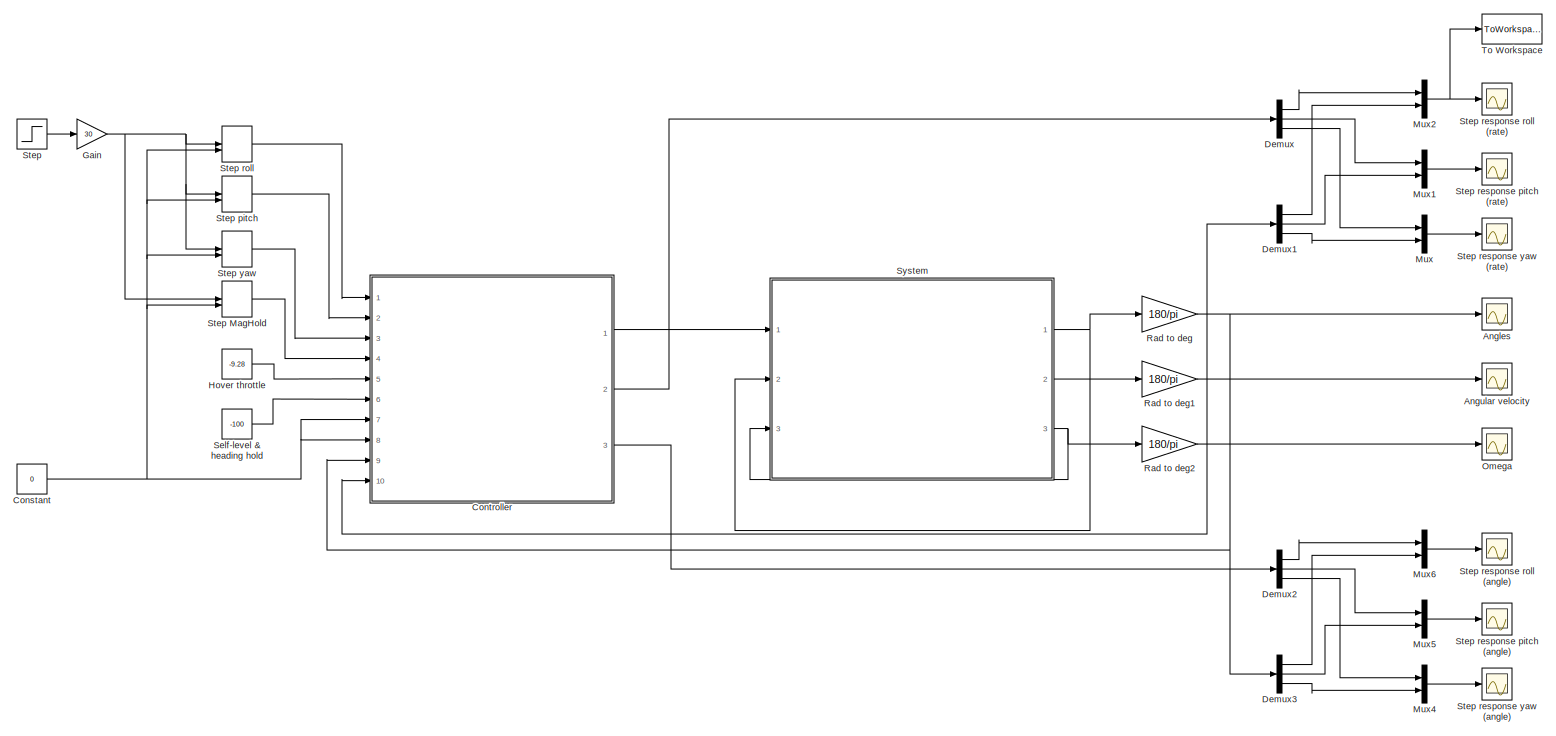
[diagram: root canvas - part 1/1, most of the canvas]
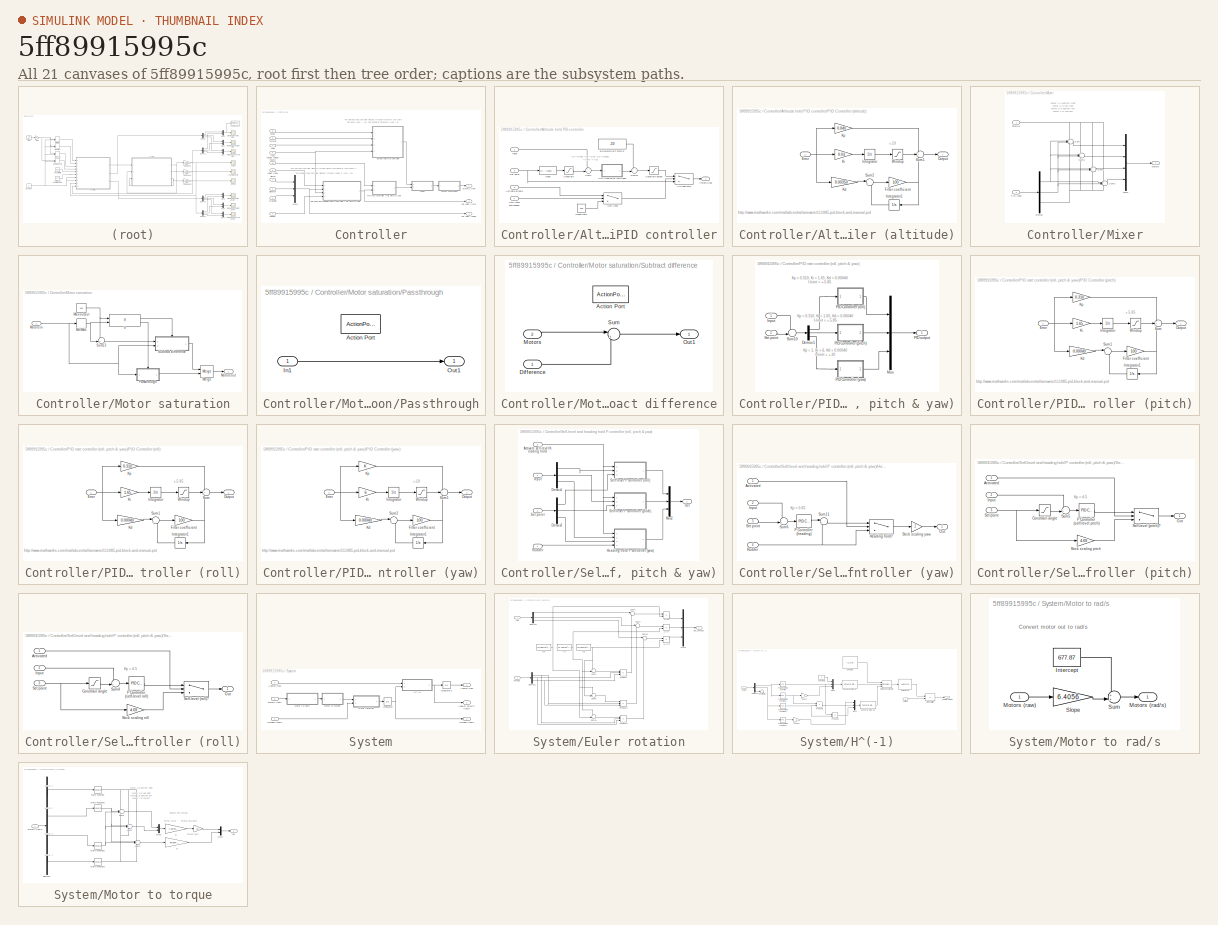
[diagram: thumbnail index - all 21 canvases of the model, root first then tree order]
MODEL slx_5ff89915995c
KIND model
BLOCK [Scope] Angles
  Floating = off
  MaxDataPoints = 100000
  NumInputPorts = 1
  Ports = [1]
  SaveName = ScopeData2
  ShowLegends = off
BLOCK [Scope] Angular velocity
  Floating = off
  MaxDataPoints = 100000
  NumInputPorts = 1
  Ports = [1]
  SaveName = ScopeData1
  ShowLegends = off
BLOCK [Constant] Constant
  Value = 0
BLOCK [SubSystem] Controller
  Ports = [10, 3]
  RequestExecContextInheritance = off
BLOCK [Inport] Controller/AUX1
  IconDisplay = Port number
  Port = 6
BLOCK [Inport] Controller/AUX2
  IconDisplay = Port number
  Port = 7
BLOCK [Inport] Controller/Aileron
  IconDisplay = Port number
BLOCK [SubSystem] Controller/Altitude hold PID controller
  Ports = [4, 1]
  RequestExecContextInheritance = off
BLOCK [Inport] Controller/Altitude hold PID controller/Activate althold
  IconDisplay = Port number
  Port = 3
BLOCK [Switch] Controller/Altitude hold PID controller/Altitude hold
  Criteria = u2 > Threshold
  InputSameDT = off
  SaturateOnIntegerOverflow = off
BLOCK [Saturate] Controller/Altitude hold PID controller/Constrain
  InputPortMap = u0
  LowerLimit = 50
  Ports = [1, 1]
  UpperLimit = 1500
BLOCK [Saturate] Controller/Altitude hold PID controller/Constrain output
  InputPortMap = u0
  LowerLimit = -90
  Ports = [1, 1]
  UpperLimit = 100
BLOCK [Constant] Controller/Altitude hold PID controller/Deactivate
  Value = -100
BLOCK [Inport] Controller/Altitude hold PID controller/Input
  IconDisplay = Port number
BLOCK [SubSystem] Controller/Altitude hold PID controller/PID Controller (altitude)
  Ports = [1, 1]
  RequestExecContextInheritance = off
BLOCK [Inport] Controller/Altitude hold PID controller/PID Controller (altitude)/Error
  IconDisplay = Port number
BLOCK [Gain] Controller/Altitude hold PID controller/PID Controller (altitude)/Filter coefficient
  Gain = 100
  OutDataTypeStr = Inherit: Inherit via internal rule
  ParamDataTypeStr = Inherit: Inherit via internal rule
  SaturateOnIntegerOverflow = off
BLOCK [Integrator] Controller/Altitude hold PID controller/PID Controller (altitude)/Integrator
  Ports = [1, 1]
BLOCK [Integrator] Controller/Altitude hold PID controller/PID Controller (altitude)/Integrator1
  Ports = [1, 1]
BLOCK [Gain] Controller/Altitude hold PID controller/PID Controller (altitude)/Kd
  Gain = 0.00350
  OutDataTypeStr = Inherit: Inherit via internal rule
  ParamDataTypeStr = Inherit: Inherit via internal rule
  SaturateOnIntegerOverflow = off
BLOCK [Gain] Controller/Altitude hold PID controller/PID Controller (altitude)/Ki
  Gain = 0.03
  OutDataTypeStr = Inherit: Inherit via internal rule
  ParamDataTypeStr = Inherit: Inherit via internal rule
  SaturateOnIntegerOverflow = off
BLOCK [Gain] Controller/Altitude hold PID controller/PID Controller (altitude)/Kp
  Gain = 0.040
  OutDataTypeStr = Inherit: Inherit via internal rule
  ParamDataTypeStr = Inherit: Inherit via internal rule
  SaturateOnIntegerOverflow = off
BLOCK [Outport] Controller/Altitude hold PID controller/PID Controller (altitude)/Output
  IconDisplay = Port number
BLOCK [Sum] Controller/Altitude hold PID controller/PID Controller (altitude)/Sum1
  IconShape = round
  InputSameDT = off
  Inputs = +++
  OutDataTypeStr = Inherit: Inherit via internal rule
  Ports = [3, 1]
  SaturateOnIntegerOverflow = off
BLOCK [Sum] Controller/Altitude hold PID controller/PID Controller (altitude)/Sum2
  IconShape = round
  InputSameDT = off
  Inputs = |+-
  OutDataTypeStr = Inherit: Inherit via internal rule
  Ports = [2, 1]
  SaturateOnIntegerOverflow = off
BLOCK [Saturate] Controller/Altitude hold PID controller/PID Controller (altitude)/Windup
  InputPortMap = u0
  LowerLimit = -10
  Ports = [1, 1]
  UpperLimit = 10
BLOCK [Switch] Controller/Altitude hold PID controller/Self-level
  Criteria = u2 > Threshold
  InputSameDT = off
  SaturateOnIntegerOverflow = off
  Threshold = -10
BLOCK [Inport] Controller/Altitude hold PID controller/Self-level activated?
  IconDisplay = Port number
  Port = 4
BLOCK [Inport] Controller/Altitude hold PID controller/Set point
  IconDisplay = Port number
  Port = 2
BLOCK [Sum] Controller/Altitude hold PID controller/Sum12
  IconShape = round
  InputSameDT = off
  Inputs = ++|
  OutDataTypeStr = Inherit: Inherit via internal rule
  Ports = [2, 1]
  SaturateOnIntegerOverflow = off
BLOCK [Sum] Controller/Altitude hold PID controller/Sum7
  IconShape = round
  InputSameDT = off
  Inputs = -+|
  OutDataTypeStr = Inherit: Inherit via internal rule
  Ports = [2, 1]
  SaturateOnIntegerOverflow = off
BLOCK [Outport] Controller/Altitude hold PID controller/Throttle out
  IconDisplay = Port number
BLOCK [Constant] Controller/Altitude hold PID controller/altHoldInitialThrottle
  Value = -30
BLOCK [Fcn] Controller/Altitude hold PID controller/mapf
  Expr = (u - (-100)) * (1500 - 50) / (100 - (-100)) + 50
BLOCK [Inport] Controller/Angles (deg)
  IconDisplay = Port number
  Port = 9
BLOCK [Inport] Controller/Angular velocity (deg//s)
  IconDisplay = Port number
  Port = 10
BLOCK [Inport] Controller/Elevator
  IconDisplay = Port number
  Port = 2
BLOCK [Inport] Controller/MagHold
  IconDisplay = Port number
  Port = 4
BLOCK [SubSystem] Controller/Mixer
  Ports = [2, 1]
  RequestExecContextInheritance = off
BLOCK [Demux] Controller/Mixer/Demux
  DisplayOption = bar
  Outputs = 3
  Ports = [1, 3]
BLOCK [Outport] Controller/Mixer/Motors
  IconDisplay = Port number
BLOCK [Mux] Controller/Mixer/Mux1
  DisplayOption = bar
  Ports = [4, 1]
BLOCK [Inport] Controller/Mixer/PID input
  IconDisplay = Port number
  Port = 2
BLOCK [Sum] Controller/Mixer/Sum
  IconShape = round
  InputSameDT = off
  Inputs = +-+-
  OutDataTypeStr = Inherit: Inherit via internal rule
  Ports = [4, 1]
  SaturateOnIntegerOverflow = off
BLOCK [Sum] Controller/Mixer/Sum1
  IconShape = round
  InputSameDT = off
  Inputs = +--+
  OutDataTypeStr = Inherit: Inherit via internal rule
  Ports = [4, 1]
  SaturateOnIntegerOverflow = off
BLOCK [Sum] Controller/Mixer/Sum2
  IconShape = round
  InputSameDT = off
  Inputs = ++++
  OutDataTypeStr = Inherit: Inherit via internal rule
  Ports = [4, 1]
  SaturateOnIntegerOverflow = off
BLOCK [Sum] Controller/Mixer/Sum3
  IconShape = round
  InputSameDT = off
  Inputs = ++--
  OutDataTypeStr = Inherit: Inherit via internal rule
  Ports = [4, 1]
  SaturateOnIntegerOverflow = off
BLOCK [Inport] Controller/Mixer/Throttle
  IconDisplay = Port number
BLOCK [SubSystem] Controller/Motor saturation
  Ports = [1, 1]
  RequestExecContextInheritance = off
BLOCK [If] Controller/Motor saturation/If
  IfExpression = u2 > u1
  NumInputs = 2
  Ports = [2, 2]
BLOCK [Constant] Controller/Motor saturation/Max output
  Value = 100
BLOCK [Merge] Controller/Motor saturation/Merge
  Ports = [2, 1]
BLOCK [MinMax] Controller/Motor saturation/MinMax
  Function = max
  InputSameDT = off
  Ports = [1, 1]
  SaturateOnIntegerOverflow = off
BLOCK [Inport] Controller/Motor saturation/Motors in
  IconDisplay = Port number
BLOCK [Outport] Controller/Motor saturation/Motors out
  IconDisplay = Port number
BLOCK [SubSystem] Controller/Motor saturation/Passthrough
  Ports = [1, 1, 0, 0, 0, 0, 0, 1]
  RequestExecContextInheritance = off
  TreatAsAtomicUnit = on
BLOCK [ActionPort] Controller/Motor saturation/Passthrough/Action Port
  ActionType = else
BLOCK [Inport] Controller/Motor saturation/Passthrough/In1
  IconDisplay = Port number
BLOCK [Outport] Controller/Motor saturation/Passthrough/Out1
  IconDisplay = Port number
BLOCK [SubSystem] Controller/Motor saturation/Subtract difference
  Ports = [2, 1, 0, 0, 0, 0, 0, 1]
  RequestExecContextInheritance = off
  TreatAsAtomicUnit = on
BLOCK [ActionPort] Controller/Motor saturation/Subtract difference/Action Port
  ActionType = then
BLOCK [Inport] Controller/Motor saturation/Subtract difference/Difference
  IconDisplay = Port number
BLOCK [Inport] Controller/Motor saturation/Subtract difference/Motors
  IconDisplay = Port number
  Port = 2
BLOCK [Outport] Controller/Motor saturation/Subtract difference/Out1
  IconDisplay = Port number
BLOCK [Sum] Controller/Motor saturation/Subtract difference/Sum
  IconShape = round
  InputSameDT = off
  Inputs = |+-
  OutDataTypeStr = Inherit: Inherit via internal rule
  Ports = [2, 1]
  SaturateOnIntegerOverflow = off
BLOCK [Sum] Controller/Motor saturation/Sum13
  IconShape = round
  InputSameDT = off
  Inputs = -+|
  OutDataTypeStr = Inherit: Inherit via internal rule
  Ports = [2, 1]
  SaturateOnIntegerOverflow = off
BLOCK [Outport] Controller/Motors (raw)
  IconDisplay = Port number
BLOCK [Mux] Controller/Mux2
  DisplayOption = bar
  Inputs = 3
  Ports = [3, 1]
BLOCK [SubSystem] Controller/PID rate controller (roll, pitch & yaw)
  Ports = [2, 1]
  RequestExecContextInheritance = off
BLOCK [Demux] Controller/PID rate controller (roll, pitch & yaw)/Demux1
  DisplayOption = bar
  Outputs = 3
  Ports = [1, 3]
BLOCK [Inport] Controller/PID rate controller (roll, pitch & yaw)/Input
  IconDisplay = Port number
BLOCK [Mux] Controller/PID rate controller (roll, pitch & yaw)/Mux
  DisplayOption = bar
  Inputs = 3
  Ports = [3, 1]
BLOCK [SubSystem] Controller/PID rate controller (roll, pitch & yaw)/PID Controller (pitch)
  Ports = [1, 1]
  RequestExecContextInheritance = off
BLOCK [Inport] Controller/PID rate controller (roll, pitch & yaw)/PID Controller (pitch)/Error
  IconDisplay = Port number
BLOCK [Gain] Controller/PID rate controller (roll, pitch & yaw)/PID Controller (pitch)/Filter coefficient
  Gain = 100
  OutDataTypeStr = Inherit: Inherit via internal rule
  ParamDataTypeStr = Inherit: Inherit via internal rule
  SaturateOnIntegerOverflow = off
BLOCK [Integrator] Controller/PID rate controller (roll, pitch & yaw)/PID Controller (pitch)/Integrator
  Ports = [1, 1]
BLOCK [Integrator] Controller/PID rate controller (roll, pitch & yaw)/PID Controller (pitch)/Integrator1
  Ports = [1, 1]
BLOCK [Gain] Controller/PID rate controller (roll, pitch & yaw)/PID Controller (pitch)/Kd
  Gain = 0.00040
  OutDataTypeStr = Inherit: Inherit via internal rule
  ParamDataTypeStr = Inherit: Inherit via internal rule
  SaturateOnIntegerOverflow = off
BLOCK [Gain] Controller/PID rate controller (roll, pitch & yaw)/PID Controller (pitch)/Ki
  Gain = 1.65
  OutDataTypeStr = Inherit: Inherit via internal rule
  ParamDataTypeStr = Inherit: Inherit via internal rule
  SaturateOnIntegerOverflow = off
BLOCK [Gain] Controller/PID rate controller (roll, pitch & yaw)/PID Controller (pitch)/Kp
  Gain = 0.310
  OutDataTypeStr = Inherit: Inherit via internal rule
  ParamDataTypeStr = Inherit: Inherit via internal rule
  SaturateOnIntegerOverflow = off
BLOCK [Outport] Controller/PID rate controller (roll, pitch & yaw)/PID Controller (pitch)/Output
  IconDisplay = Port number
BLOCK [Sum] Controller/PID rate controller (roll, pitch & yaw)/PID Controller (pitch)/Sum
  IconShape = round
  InputSameDT = off
  Inputs = +++
  OutDataTypeStr = Inherit: Inherit via internal rule
  Ports = [3, 1]
  SaturateOnIntegerOverflow = off
BLOCK [Sum] Controller/PID rate controller (roll, pitch & yaw)/PID Controller (pitch)/Sum1
  IconShape = round
  InputSameDT = off
  Inputs = |+-
  OutDataTypeStr = Inherit: Inherit via internal rule
  Ports = [2, 1]
  SaturateOnIntegerOverflow = off
BLOCK [Saturate] Controller/PID rate controller (roll, pitch & yaw)/PID Controller (pitch)/Windup
  InputPortMap = u0
  LowerLimit = -5.85
  Ports = [1, 1]
  UpperLimit = 5.85
BLOCK [SubSystem] Controller/PID rate controller (roll, pitch & yaw)/PID Controller (roll)
  Ports = [1, 1]
  RequestExecContextInheritance = off
BLOCK [Inport] Controller/PID rate controller (roll, pitch & yaw)/PID Controller (roll)/Error
  IconDisplay = Port number
BLOCK [Gain] Controller/PID rate controller (roll, pitch & yaw)/PID Controller (roll)/Filter coefficient
  Gain = 100
  OutDataTypeStr = Inherit: Inherit via internal rule
  ParamDataTypeStr = Inherit: Inherit via internal rule
  SaturateOnIntegerOverflow = off
BLOCK [Integrator] Controller/PID rate controller (roll, pitch & yaw)/PID Controller (roll)/Integrator
  Ports = [1, 1]
BLOCK [Integrator] Controller/PID rate controller (roll, pitch & yaw)/PID Controller (roll)/Integrator1
  Ports = [1, 1]
BLOCK [Gain] Controller/PID rate controller (roll, pitch & yaw)/PID Controller (roll)/Kd
  Gain = 0.00040
  OutDataTypeStr = Inherit: Inherit via internal rule
  ParamDataTypeStr = Inherit: Inherit via internal rule
  SaturateOnIntegerOverflow = off
BLOCK [Gain] Controller/PID rate controller (roll, pitch & yaw)/PID Controller (roll)/Ki
  Gain = 1.65
  OutDataTypeStr = Inherit: Inherit via internal rule
  ParamDataTypeStr = Inherit: Inherit via internal rule
  SaturateOnIntegerOverflow = off
BLOCK [Gain] Controller/PID rate controller (roll, pitch & yaw)/PID Controller (roll)/Kp
  Gain = 0.310
  OutDataTypeStr = Inherit: Inherit via internal rule
  ParamDataTypeStr = Inherit: Inherit via internal rule
  SaturateOnIntegerOverflow = off
BLOCK [Outport] Controller/PID rate controller (roll, pitch & yaw)/PID Controller (roll)/Output
  IconDisplay = Port number
BLOCK [Sum] Controller/PID rate controller (roll, pitch & yaw)/PID Controller (roll)/Sum
  IconShape = round
  InputSameDT = off
  Inputs = +++
  OutDataTypeStr = Inherit: Inherit via internal rule
  Ports = [3, 1]
  SaturateOnIntegerOverflow = off
BLOCK [Sum] Controller/PID rate controller (roll, pitch & yaw)/PID Controller (roll)/Sum1
  IconShape = round
  InputSameDT = off
  Inputs = |+-
  OutDataTypeStr = Inherit: Inherit via internal rule
  Ports = [2, 1]
  SaturateOnIntegerOverflow = off
BLOCK [Saturate] Controller/PID rate controller (roll, pitch & yaw)/PID Controller (roll)/Windup
  InputPortMap = u0
  LowerLimit = -5.85
  Ports = [1, 1]
  UpperLimit = 5.85
BLOCK [SubSystem] Controller/PID rate controller (roll, pitch & yaw)/PID Controller (yaw)
  Ports = [1, 1]
  RequestExecContextInheritance = off
BLOCK [Inport] Controller/PID rate controller (roll, pitch & yaw)/PID Controller (yaw)/Error
  IconDisplay = Port number
BLOCK [Gain] Controller/PID rate controller (roll, pitch & yaw)/PID Controller (yaw)/Filter coefficient
  Gain = 100
  OutDataTypeStr = Inherit: Inherit via internal rule
  ParamDataTypeStr = Inherit: Inherit via internal rule
  SaturateOnIntegerOverflow = off
BLOCK [Integrator] Controller/PID rate controller (roll, pitch & yaw)/PID Controller (yaw)/Integrator
  Ports = [1, 1]
BLOCK [Integrator] Controller/PID rate controller (roll, pitch & yaw)/PID Controller (yaw)/Integrator1
  Ports = [1, 1]
BLOCK [Gain] Controller/PID rate controller (roll, pitch & yaw)/PID Controller (yaw)/Kd
  Gain = 0.00040
  OutDataTypeStr = Inherit: Inherit via internal rule
  ParamDataTypeStr = Inherit: Inherit via internal rule
  SaturateOnIntegerOverflow = off
BLOCK [Gain] Controller/PID rate controller (roll, pitch & yaw)/PID Controller (yaw)/Ki
  Gain = 6
  OutDataTypeStr = Inherit: Inherit via internal rule
  ParamDataTypeStr = Inherit: Inherit via internal rule
  SaturateOnIntegerOverflow = off
BLOCK [Gain] Controller/PID rate controller (roll, pitch & yaw)/PID Controller (yaw)/Kp
  OutDataTypeStr = Inherit: Inherit via internal rule
  ParamDataTypeStr = Inherit: Inherit via internal rule
  SaturateOnIntegerOverflow = off
BLOCK [Outport] Controller/PID rate controller (roll, pitch & yaw)/PID Controller (yaw)/Output
  IconDisplay = Port number
BLOCK [Sum] Controller/PID rate controller (roll, pitch & yaw)/PID Controller (yaw)/Sum1
  IconShape = round
  InputSameDT = off
  Inputs = +++
  OutDataTypeStr = Inherit: Inherit via internal rule
  Ports = [3, 1]
  SaturateOnIntegerOverflow = off
BLOCK [Sum] Controller/PID rate controller (roll, pitch & yaw)/PID Controller (yaw)/Sum2
  IconShape = round
  InputSameDT = off
  Inputs = |+-
  OutDataTypeStr = Inherit: Inherit via internal rule
  Ports = [2, 1]
  SaturateOnIntegerOverflow = off
BLOCK [Saturate] Controller/PID rate controller (roll, pitch & yaw)/PID Controller (yaw)/Windup
  InputPortMap = u0
  LowerLimit = -10
  Ports = [1, 1]
  UpperLimit = 10
BLOCK [Outport] Controller/PID rate controller (roll, pitch & yaw)/PID output
  IconDisplay = Port number
BLOCK [Inport] Controller/PID rate controller (roll, pitch & yaw)/Set point
  IconDisplay = Port number
  Port = 2
BLOCK [Sum] Controller/PID rate controller (roll, pitch & yaw)/Sum10
  IconShape = round
  InputSameDT = off
  Inputs = -+|
  OutDataTypeStr = Inherit: Inherit via internal rule
  Ports = [2, 1]
  SaturateOnIntegerOverflow = off
BLOCK [Inport] Controller/Rudder
  IconDisplay = Port number
  Port = 3
BLOCK [SubSystem] Controller/Self-level and heading hold P controller (roll, pitch & yaw)
  Ports = [4, 1]
  RequestExecContextInheritance = off
BLOCK [Inport] Controller/Self-level and heading hold P controller (roll, pitch & yaw)/Activate self-level//heading hold
  IconDisplay = Port number
  Port = 3
BLOCK [Demux] Controller/Self-level and heading hold P controller (roll, pitch & yaw)/Demux1
  DisplayOption = bar
  Outputs = 3
  Ports = [1, 3]
BLOCK [Demux] Controller/Self-level and heading hold P controller (roll, pitch & yaw)/Demux2
  DisplayOption = bar
  Outputs = 3
  Ports = [1, 3]
BLOCK [SubSystem] Controller/Self-level and heading hold P controller (roll, pitch & yaw)/Heading hold P controller (yaw)
  Ports = [4, 1]
  RequestExecContextInheritance = off
BLOCK [Inport] Controller/Self-level and heading hold P controller (roll, pitch & yaw)/Heading hold P controller (yaw)/Activated
  IconDisplay = Port number
BLOCK [Switch] Controller/Self-level and heading hold P controller (roll, pitch & yaw)/Heading hold P controller (yaw)/Heading hold?
  Criteria = u2 > Threshold
  InputSameDT = off
  SaturateOnIntegerOverflow = off
  Threshold = 50
BLOCK [Inport] Controller/Self-level and heading hold P controller (roll, pitch & yaw)/Heading hold P controller (yaw)/Input
  IconDisplay = Port number
  Port = 2
BLOCK [Outport] Controller/Self-level and heading hold P controller (roll, pitch & yaw)/Heading hold P controller (yaw)/Out
  IconDisplay = Port number
BLOCK [Reference] Controller/Self-level and heading hold P controller (roll, pitch & yaw)/Heading hold P controller (yaw)/P Controller (heading)  REF=simulink/Continuous/PID Controller
  AntiWindupMode = none
  Controller = P
  D = 0
  DOutDataTypeStr = Inherit: Inherit via internal rule
  DOutMax = []
  DOutMin = []
  DParamDataTypeStr = Inherit: Inherit via internal rule
  DParamMax = []
  DParamMin = []
  ExternalReset = none
  FilterContinuousStateAttributes = ''
  FilterMethod = Forward Euler
  FilterOutDataTypeStr = Inherit: Inherit via internal rule
  FilterOutMax = []
  FilterOutMin = []
  FilterRTWStateStorageClass = Auto
  FilterStateMustResolveToSignalObject = off
  Form = Parallel
  I = 1
  IOutDataTypeStr = Inherit: Inherit via internal rule
  IOutMax = []
  IOutMin = []
  IParamDataTypeStr = Inherit: Inherit via internal rule
  IParamMax = []
  IParamMin = []
  IgnoreLimit = off
  InitialConditionForFilter = 0
  InitialConditionForIntegrator = 0
  InitialConditionSource = internal
  IntegratorContinuousStateAttributes = ''
  IntegratorMethod = Forward Euler
  IntegratorOutDataTypeStr = Inherit: Inherit via internal rule
  IntegratorOutMax = []
  IntegratorOutMin = []
  IntegratorRTWStateStorageClass = Auto
  IntegratorStateMustResolveToSignalObject = off
  Kb = 1
  KbOutDataTypeStr = Inherit: Inherit via internal rule
  KbOutMax = []
  KbOutMin = []
  KbParamDataTypeStr = Inherit: Inherit via internal rule
  KbParamMax = []
  KbParamMin = []
  Kt = 1
  KtOutDataTypeStr = Inherit: Inherit via internal rule
  KtOutMax = []
  KtOutMin = []
  KtParamDataTypeStr = Inherit: Inherit via internal rule
  KtParamMax = []
  KtParamMin = []
  LimitOutput = off
  LinearizeAsGain = on
  LockScale = off
  LowerSaturationLimit = -inf
  N = 100
  NOutDataTypeStr = Inherit: Inherit via internal rule
  NOutMax = []
  NOutMin = []
  NParamDataTypeStr = Inherit: Inherit via internal rule
  NParamMax = []
  NParamMin = []
  P = 0.65
  POutDataTypeStr = Inherit: Inherit via internal rule
  POutMax = []
  POutMin = []
  PParamDataTypeStr = Inherit: Inherit via internal rule
  PParamMax = []
  PParamMin = []
  Ports = [1, 1]
  RndMeth = Floor
  SampleTime = 1
  SaturateOnIntegerOverflow = off
  SaturationOutDataTypeStr = Inherit: Same as input
  SaturationOutMax = []
  SaturationOutMin = []
  SourceBlock = simulink/Continuous/PID Controller
  SourceType = PID 1dof
  SumAccumDataTypeStr = Inherit: Inherit via internal rule
  SumDAccumDataTypeStr = Inherit: Inherit via internal rule
  SumDOutDataTypeStr = Inherit: Inherit via internal rule
  SumDOutMax = []
  SumDOutMin = []
  SumI1AccumDataTypeStr = Inherit: Inherit via internal rule
  SumI1OutDataTypeStr = Inherit: Inherit via internal rule
  SumI1OutMax = []
  SumI1OutMin = []
  SumI2AccumDataTypeStr = Inherit: Inherit via internal rule
  SumI2OutDataTypeStr = Inherit: Inherit via internal rule
  SumI2OutMax = []
  SumI2OutMin = []
  SumI3AccumDataTypeStr = Inherit: Inherit via internal rule
  SumI3OutDataTypeStr = Inherit: Inherit via internal rule
  SumI3OutMax = []
  SumI3OutMin = []
  SumOutDataTypeStr = Inherit: Inherit via internal rule
  SumOutMax = []
  SumOutMin = []
  TimeDomain = Continuous-time
  TrackingMode = off
  UpperSaturationLimit = inf
  ZeroCross = on
BLOCK [Inport] Controller/Self-level and heading hold P controller (roll, pitch & yaw)/Heading hold P controller (yaw)/Rudder
  IconDisplay = Port number
  Port = 4
BLOCK [Inport] Controller/Self-level and heading hold P controller (roll, pitch & yaw)/Heading hold P controller (yaw)/Set point
  IconDisplay = Port number
  Port = 3
BLOCK [Gain] Controller/Self-level and heading hold P controller (roll, pitch & yaw)/Heading hold P controller (yaw)/Stick scaling yaw
  Gain = 2
  OutDataTypeStr = Inherit: Inherit via internal rule
  ParamDataTypeStr = Inherit: Inherit via internal rule
  SaturateOnIntegerOverflow = off
BLOCK [Sum] Controller/Self-level and heading hold P controller (roll, pitch & yaw)/Heading hold P controller (yaw)/Sum11
  IconShape = round
  InputSameDT = off
  Inputs = |++
  OutDataTypeStr = Inherit: Inherit via internal rule
  Ports = [2, 1]
  SaturateOnIntegerOverflow = off
BLOCK [Sum] Controller/Self-level and heading hold P controller (roll, pitch & yaw)/Heading hold P controller (yaw)/Sum6
  IconShape = round
  InputSameDT = off
  Inputs = -+|
  OutDataTypeStr = Inherit: Inherit via internal rule
  Ports = [2, 1]
  SaturateOnIntegerOverflow = off
BLOCK [Inport] Controller/Self-level and heading hold P controller (roll, pitch & yaw)/Input
  IconDisplay = Port number
BLOCK [Mux] Controller/Self-level and heading hold P controller (roll, pitch & yaw)/Mux2
  DisplayOption = bar
  Inputs = 3
  Ports = [3, 1]
BLOCK [Outport] Controller/Self-level and heading hold P controller (roll, pitch & yaw)/Out
  IconDisplay = Port number
BLOCK [Inport] Controller/Self-level and heading hold P controller (roll, pitch & yaw)/Rudder
  IconDisplay = Port number
  Port = 4
BLOCK [SubSystem] Controller/Self-level and heading hold P controller (roll, pitch & yaw)/Self-level P controller (pitch)
  Ports = [3, 1]
  RequestExecContextInheritance = off
BLOCK [Inport] Controller/Self-level and heading hold P controller (roll, pitch & yaw)/Self-level P controller (pitch)/Activated
  IconDisplay = Port number
BLOCK [Saturate] Controller/Self-level and heading hold P controller (roll, pitch & yaw)/Self-level P controller (pitch)/Constrain angle 
  InputPortMap = u0
  LowerLimit = -50
  Ports = [1, 1]
  UpperLimit = 50
BLOCK [Inport] Controller/Self-level and heading hold P controller (roll, pitch & yaw)/Self-level P controller (pitch)/Input
  IconDisplay = Port number
  Port = 2
BLOCK [Outport] Controller/Self-level and heading hold P controller (roll, pitch & yaw)/Self-level P controller (pitch)/Out
  IconDisplay = Port number
BLOCK [Reference] Controller/Self-level and heading hold P controller (roll, pitch & yaw)/Self-level P controller (pitch)/P Controller (self-level pitch)  REF=simulink/Continuous/PID Controller
  AntiWindupMode = none
  Controller = P
  D = 0
  DOutDataTypeStr = Inherit: Inherit via internal rule
  DOutMax = []
  DOutMin = []
  DParamDataTypeStr = Inherit: Inherit via internal rule
  DParamMax = []
  DParamMin = []
  ExternalReset = none
  FilterContinuousStateAttributes = ''
  FilterMethod = Forward Euler
  FilterOutDataTypeStr = Inherit: Inherit via internal rule
  FilterOutMax = []
  FilterOutMin = []
  FilterRTWStateStorageClass = Auto
  FilterStateMustResolveToSignalObject = off
  Form = Parallel
  I = 1
  IOutDataTypeStr = Inherit: Inherit via internal rule
  IOutMax = []
  IOutMin = []
  IParamDataTypeStr = Inherit: Inherit via internal rule
  IParamMax = []
  IParamMin = []
  IgnoreLimit = off
  InitialConditionForFilter = 0
  InitialConditionForIntegrator = 0
  InitialConditionSource = internal
  IntegratorContinuousStateAttributes = ''
  IntegratorMethod = Forward Euler
  IntegratorOutDataTypeStr = Inherit: Inherit via internal rule
  IntegratorOutMax = []
  IntegratorOutMin = []
  IntegratorRTWStateStorageClass = Auto
  IntegratorStateMustResolveToSignalObject = off
  Kb = 1
  KbOutDataTypeStr = Inherit: Inherit via internal rule
  KbOutMax = []
  KbOutMin = []
  KbParamDataTypeStr = Inherit: Inherit via internal rule
  KbParamMax = []
  KbParamMin = []
  Kt = 1
  KtOutDataTypeStr = Inherit: Inherit via internal rule
  KtOutMax = []
  KtOutMin = []
  KtParamDataTypeStr = Inherit: Inherit via internal rule
  KtParamMax = []
  KtParamMin = []
  LimitOutput = off
  LinearizeAsGain = on
  LockScale = off
  LowerSaturationLimit = -inf
  N = 100
  NOutDataTypeStr = Inherit: Inherit via internal rule
  NOutMax = []
  NOutMin = []
  NParamDataTypeStr = Inherit: Inherit via internal rule
  NParamMax = []
  NParamMin = []
  P = 4.50
  POutDataTypeStr = Inherit: Inherit via internal rule
  POutMax = []
  POutMin = []
  PParamDataTypeStr = Inherit: Inherit via internal rule
  PParamMax = []
  PParamMin = []
  Ports = [1, 1]
  RndMeth = Floor
  SampleTime = 1
  SaturateOnIntegerOverflow = off
  SaturationOutDataTypeStr = Inherit: Same as input
  SaturationOutMax = []
  SaturationOutMin = []
  SourceBlock = simulink/Continuous/PID Controller
  SourceType = PID 1dof
  SumAccumDataTypeStr = Inherit: Inherit via internal rule
  SumDAccumDataTypeStr = Inherit: Inherit via internal rule
  SumDOutDataTypeStr = Inherit: Inherit via internal rule
  SumDOutMax = []
  SumDOutMin = []
  SumI1AccumDataTypeStr = Inherit: Inherit via internal rule
  SumI1OutDataTypeStr = Inherit: Inherit via internal rule
  SumI1OutMax = []
  SumI1OutMin = []
  SumI2AccumDataTypeStr = Inherit: Inherit via internal rule
  SumI2OutDataTypeStr = Inherit: Inherit via internal rule
  SumI2OutMax = []
  SumI2OutMin = []
  SumI3AccumDataTypeStr = Inherit: Inherit via internal rule
  SumI3OutDataTypeStr = Inherit: Inherit via internal rule
  SumI3OutMax = []
  SumI3OutMin = []
  SumOutDataTypeStr = Inherit: Inherit via internal rule
  SumOutMax = []
  SumOutMin = []
  TimeDomain = Continuous-time
  TrackingMode = off
  UpperSaturationLimit = inf
  ZeroCross = on
BLOCK [Switch] Controller/Self-level and heading hold P controller (roll, pitch & yaw)/Self-level P controller (pitch)/Self-level (pitch)?
  Criteria = u2 > Threshold
  InputSameDT = off
  SaturateOnIntegerOverflow = off
  Threshold = -10
BLOCK [Inport] Controller/Self-level and heading hold P controller (roll, pitch & yaw)/Self-level P controller (pitch)/Set point
  IconDisplay = Port number
  Port = 3
BLOCK [Gain] Controller/Self-level and heading hold P controller (roll, pitch & yaw)/Self-level P controller (pitch)/Stick scaling pitch
  Gain = 4.69
  OutDataTypeStr = Inherit: Inherit via internal rule
  ParamDataTypeStr = Inherit: Inherit via internal rule
  SaturateOnIntegerOverflow = off
BLOCK [Sum] Controller/Self-level and heading hold P controller (roll, pitch & yaw)/Self-level P controller (pitch)/Sum5
  IconShape = round
  InputSameDT = off
  Inputs = -+|
  OutDataTypeStr = Inherit: Inherit via internal rule
  Ports = [2, 1]
  SaturateOnIntegerOverflow = off
BLOCK [SubSystem] Controller/Self-level and heading hold P controller (roll, pitch & yaw)/Self-level P controller (roll)
  Ports = [3, 1]
  RequestExecContextInheritance = off
BLOCK [Inport] Controller/Self-level and heading hold P controller (roll, pitch & yaw)/Self-level P controller (roll)/Activated
  IconDisplay = Port number
BLOCK [Saturate] Controller/Self-level and heading hold P controller (roll, pitch & yaw)/Self-level P controller (roll)/Constrain angle
  InputPortMap = u0
  LowerLimit = -50
  Ports = [1, 1]
  UpperLimit = 50
BLOCK [Inport] Controller/Self-level and heading hold P controller (roll, pitch & yaw)/Self-level P controller (roll)/Input
  IconDisplay = Port number
  Port = 2
BLOCK [Outport] Controller/Self-level and heading hold P controller (roll, pitch & yaw)/Self-level P controller (roll)/Out
  IconDisplay = Port number
BLOCK [Reference] Controller/Self-level and heading hold P controller (roll, pitch & yaw)/Self-level P controller (roll)/P Controller (self-level roll)  REF=simulink/Continuous/PID Controller
  AntiWindupMode = none
  Controller = P
  D = 0
  DOutDataTypeStr = Inherit: Inherit via internal rule
  DOutMax = []
  DOutMin = []
  DParamDataTypeStr = Inherit: Inherit via internal rule
  DParamMax = []
  DParamMin = []
  ExternalReset = none
  FilterContinuousStateAttributes = ''
  FilterMethod = Forward Euler
  FilterOutDataTypeStr = Inherit: Inherit via internal rule
  FilterOutMax = []
  FilterOutMin = []
  FilterRTWStateStorageClass = Auto
  FilterStateMustResolveToSignalObject = off
  Form = Parallel
  I = 1
  IOutDataTypeStr = Inherit: Inherit via internal rule
  IOutMax = []
  IOutMin = []
  IParamDataTypeStr = Inherit: Inherit via internal rule
  IParamMax = []
  IParamMin = []
  IgnoreLimit = off
  InitialConditionForFilter = 0
  InitialConditionForIntegrator = 0
  InitialConditionSource = internal
  IntegratorContinuousStateAttributes = ''
  IntegratorMethod = Forward Euler
  IntegratorOutDataTypeStr = Inherit: Inherit via internal rule
  IntegratorOutMax = []
  IntegratorOutMin = []
  IntegratorRTWStateStorageClass = Auto
  IntegratorStateMustResolveToSignalObject = off
  Kb = 1
  KbOutDataTypeStr = Inherit: Inherit via internal rule
  KbOutMax = []
  KbOutMin = []
  KbParamDataTypeStr = Inherit: Inherit via internal rule
  KbParamMax = []
  KbParamMin = []
  Kt = 1
  KtOutDataTypeStr = Inherit: Inherit via internal rule
  KtOutMax = []
  KtOutMin = []
  KtParamDataTypeStr = Inherit: Inherit via internal rule
  KtParamMax = []
  KtParamMin = []
  LimitOutput = off
  LinearizeAsGain = on
  LockScale = off
  LowerSaturationLimit = -inf
  N = 100
  NOutDataTypeStr = Inherit: Inherit via internal rule
  NOutMax = []
  NOutMin = []
  NParamDataTypeStr = Inherit: Inherit via internal rule
  NParamMax = []
  NParamMin = []
  P = 4.50
  POutDataTypeStr = Inherit: Inherit via internal rule
  POutMax = []
  POutMin = []
  PParamDataTypeStr = Inherit: Inherit via internal rule
  PParamMax = []
  PParamMin = []
  Ports = [1, 1]
  RndMeth = Floor
  SampleTime = 1
  SaturateOnIntegerOverflow = off
  SaturationOutDataTypeStr = Inherit: Same as input
  SaturationOutMax = []
  SaturationOutMin = []
  SourceBlock = simulink/Continuous/PID Controller
  SourceType = PID 1dof
  SumAccumDataTypeStr = Inherit: Inherit via internal rule
  SumDAccumDataTypeStr = Inherit: Inherit via internal rule
  SumDOutDataTypeStr = Inherit: Inherit via internal rule
  SumDOutMax = []
  SumDOutMin = []
  SumI1AccumDataTypeStr = Inherit: Inherit via internal rule
  SumI1OutDataTypeStr = Inherit: Inherit via internal rule
  SumI1OutMax = []
  SumI1OutMin = []
  SumI2AccumDataTypeStr = Inherit: Inherit via internal rule
  SumI2OutDataTypeStr = Inherit: Inherit via internal rule
  SumI2OutMax = []
  SumI2OutMin = []
  SumI3AccumDataTypeStr = Inherit: Inherit via internal rule
  SumI3OutDataTypeStr = Inherit: Inherit via internal rule
  SumI3OutMax = []
  SumI3OutMin = []
  SumOutDataTypeStr = Inherit: Inherit via internal rule
  SumOutMax = []
  SumOutMin = []
  TimeDomain = Continuous-time
  TrackingMode = off
  UpperSaturationLimit = inf
  ZeroCross = on
BLOCK [Switch] Controller/Self-level and heading hold P controller (roll, pitch & yaw)/Self-level P controller (roll)/Self-level (roll)?
  Criteria = u2 > Threshold
  InputSameDT = off
  SaturateOnIntegerOverflow = off
  Threshold = -10
BLOCK [Inport] Controller/Self-level and heading hold P controller (roll, pitch & yaw)/Self-level P controller (roll)/Set point
  IconDisplay = Port number
  Port = 3
BLOCK [Gain] Controller/Self-level and heading hold P controller (roll, pitch & yaw)/Self-level P controller (roll)/Stick scaling roll
  Gain = 4.69
  OutDataTypeStr = Inherit: Inherit via internal rule
  ParamDataTypeStr = Inherit: Inherit via internal rule
  SaturateOnIntegerOverflow = off
BLOCK [Sum] Controller/Self-level and heading hold P controller (roll, pitch & yaw)/Self-level P controller (roll)/Sum4
  IconShape = round
  InputSameDT = off
  Inputs = -+|
  OutDataTypeStr = Inherit: Inherit via internal rule
  Ports = [2, 1]
  SaturateOnIntegerOverflow = off
BLOCK [Inport] Controller/Self-level and heading hold P controller (roll, pitch & yaw)/Set point
  IconDisplay = Port number
  Port = 2
BLOCK [Outport] Controller/Set point (angle)
  IconDisplay = Port number
  Port = 3
BLOCK [Outport] Controller/Set point (rate)
  IconDisplay = Port number
  Port = 2
BLOCK [Inport] Controller/Sonar
  IconDisplay = Port number
  Port = 8
BLOCK [Inport] Controller/Throttle
  IconDisplay = Port number
  Port = 5
BLOCK [Demux] Demux
  DisplayOption = bar
  Outputs = 3
  Ports = [1, 3]
BLOCK [Demux] Demux1
  DisplayOption = bar
  Outputs = 3
  Ports = [1, 3]
BLOCK [Demux] Demux2
  DisplayOption = bar
  Outputs = 3
  Ports = [1, 3]
BLOCK [Demux] Demux3
  DisplayOption = bar
  Outputs = 3
  Ports = [1, 3]
BLOCK [Gain] Gain
  Gain = 30
  OutDataTypeStr = Inherit: Inherit via internal rule
  ParamDataTypeStr = Inherit: Inherit via internal rule
  SaturateOnIntegerOverflow = off
BLOCK [Constant] Hover throttle
  Value = -9.28
BLOCK [Mux] Mux
  DisplayOption = bar
  Inputs = 2
  Ports = [2, 1]
BLOCK [Mux] Mux1
  DisplayOption = bar
  Inputs = 2
  Ports = [2, 1]
BLOCK [Mux] Mux2
  DisplayOption = bar
  Inputs = 2
  Ports = [2, 1]
BLOCK [Mux] Mux4
  DisplayOption = bar
  Inputs = 2
  Ports = [2, 1]
BLOCK [Mux] Mux5
  DisplayOption = bar
  Inputs = 2
  Ports = [2, 1]
BLOCK [Mux] Mux6
  DisplayOption = bar
  Inputs = 2
  Ports = [2, 1]
BLOCK [Scope] Omega
  Floating = off
  MaxDataPoints = 100000
  NumInputPorts = 1
  Ports = [1]
  SaveName = ScopeData3
  ShowLegends = off
  YMax = 47.5
  YMin = -2.5
BLOCK [Gain] Rad to deg
  Gain = 180/pi
  OutDataTypeStr = Inherit: Inherit via internal rule
  ParamDataTypeStr = Inherit: Inherit via internal rule
  SaturateOnIntegerOverflow = off
BLOCK [Gain] Rad to deg1
  Gain = 180/pi
  OutDataTypeStr = Inherit: Inherit via internal rule
  ParamDataTypeStr = Inherit: Inherit via internal rule
  SaturateOnIntegerOverflow = off
BLOCK [Gain] Rad to deg2
  Gain = 180/pi
  OutDataTypeStr = Inherit: Inherit via internal rule
  ParamDataTypeStr = Inherit: Inherit via internal rule
  SaturateOnIntegerOverflow = off
BLOCK [Constant] Self-level & heading hold
  Value = -100
BLOCK [Step] Step
  SampleTime = 0
BLOCK [ManualSwitch] Step MagHold
  CurrentSetting = 0
BLOCK [ManualSwitch] Step pitch
  CurrentSetting = 0
BLOCK [Scope] Step response pitch (angle)
  Floating = off
  MaxDataPoints = 100000
  NumInputPorts = 1
  Ports = [1]
  SaveName = ScopeData4
  ShowLegends = off
BLOCK [Scope] Step response pitch (rate)
  Floating = off
  MaxDataPoints = 100000
  NumInputPorts = 1
  Ports = [1]
  SaveName = ScopeData6
  ShowLegends = off
  YMax = 46.9001
  YMin = 46.9
BLOCK [Scope] Step response roll (angle)
  Floating = off
  MaxDataPoints = 100000
  NumInputPorts = 1
  Ports = [1]
  SaveName = ScopeData5
  ShowLegends = off
  YMax = 48.25
  YMin = 44
BLOCK [Scope] Step response roll (rate)
  Floating = off
  MaxDataPoints = 100000
  NumInputPorts = 1
  Ports = [1]
  SaveName = ScopeData11
  ShowLegends = off
  YMax = 48.25
  YMin = 44
BLOCK [Scope] Step response yaw (angle)
  Floating = off
  MaxDataPoints = 100000
  NumInputPorts = 1
  Ports = [1]
  SaveName = ScopeData7
  ShowLegends = off
  YMax = 21
  YMin = 19
BLOCK [Scope] Step response yaw (rate)
  Floating = off
  MaxDataPoints = 100000
  NumInputPorts = 1
  Ports = [1]
  SaveName = ScopeData10
  ShowLegends = off
  YMax = 21
  YMin = 19
BLOCK [ManualSwitch] Step roll
BLOCK [ManualSwitch] Step yaw
  CurrentSetting = 0
BLOCK [SubSystem] System
  Ports = [3, 3]
  RequestExecContextInheritance = off
BLOCK [Outport] System/Angles (rad)
  IconDisplay = Port number
BLOCK [Inport] System/Angles (rad) 
  IconDisplay = Port number
  Port = 2
BLOCK [Outport] System/Angular velocity (rad//s)
  IconDisplay = Port number
  Port = 2
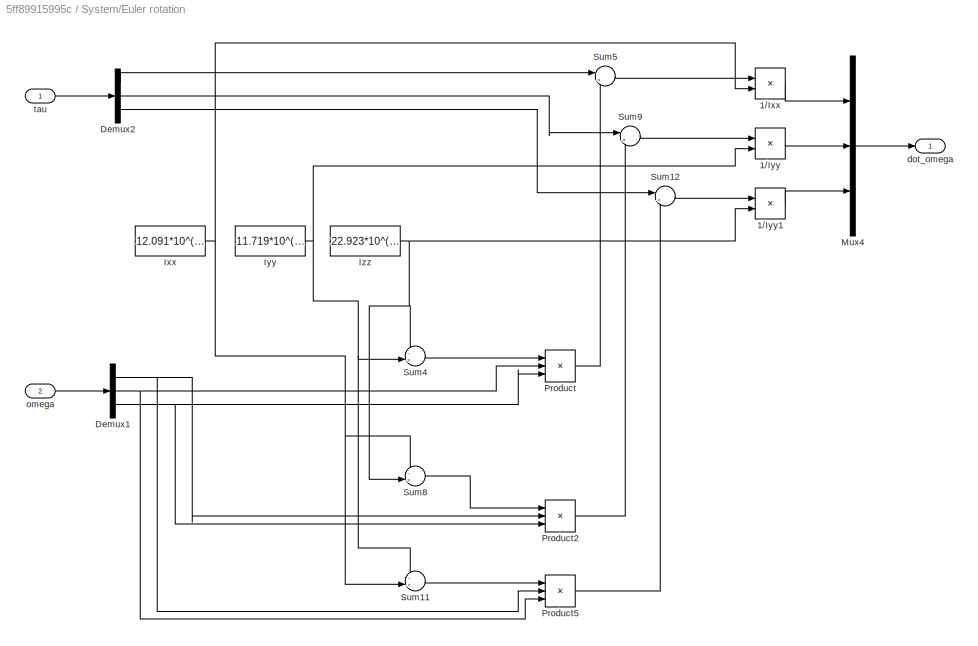
BLOCK [SubSystem] System/Euler rotation
  Ports = [2, 1]
  RequestExecContextInheritance = off
BLOCK [Product] System/Euler rotation/1//Ixx
  InputSameDT = off
  Inputs = */
  OutDataTypeStr = Inherit: Inherit via internal rule
  Ports = [2, 1]
  RndMeth = Floor
  SaturateOnIntegerOverflow = off
BLOCK [Product] System/Euler rotation/1//Iyy
  InputSameDT = off
  Inputs = */
  OutDataTypeStr = Inherit: Inherit via internal rule
  Ports = [2, 1]
  RndMeth = Floor
  SaturateOnIntegerOverflow = off
BLOCK [Product] System/Euler rotation/1//Iyy1
  InputSameDT = off
  Inputs = */
  OutDataTypeStr = Inherit: Inherit via internal rule
  Ports = [2, 1]
  RndMeth = Floor
  SaturateOnIntegerOverflow = off
BLOCK [Demux] System/Euler rotation/Demux1
  DisplayOption = bar
  Outputs = 3
  Ports = [1, 3]
BLOCK [Demux] System/Euler rotation/Demux2
  DisplayOption = bar
  Outputs = 3
  Ports = [1, 3]
BLOCK [Constant] System/Euler rotation/Ixx
  Value = 12.091*10^(-3)
BLOCK [Constant] System/Euler rotation/Iyy
  Value = 11.719*10^(-3)
BLOCK [Constant] System/Euler rotation/Izz
  Value = 22.923*10^(-3)
BLOCK [Mux] System/Euler rotation/Mux4
  DisplayOption = bar
  Inputs = 3
  Ports = [3, 1]
BLOCK [Product] System/Euler rotation/Product
  InputSameDT = off
  Inputs = 3
  OutDataTypeStr = Inherit: Inherit via internal rule
  Ports = [3, 1]
  RndMeth = Floor
  SaturateOnIntegerOverflow = off
BLOCK [Product] System/Euler rotation/Product2
  InputSameDT = off
  Inputs = 3
  OutDataTypeStr = Inherit: Inherit via internal rule
  Ports = [3, 1]
  RndMeth = Floor
  SaturateOnIntegerOverflow = off
BLOCK [Product] System/Euler rotation/Product5
  InputSameDT = off
  Inputs = 3
  OutDataTypeStr = Inherit: Inherit via internal rule
  Ports = [3, 1]
  RndMeth = Floor
  SaturateOnIntegerOverflow = off
BLOCK [Sum] System/Euler rotation/Sum11
  IconShape = round
  InputSameDT = off
  Inputs = -+|
  OutDataTypeStr = Inherit: Inherit via internal rule
  Ports = [2, 1]
  SaturateOnIntegerOverflow = off
BLOCK [Sum] System/Euler rotation/Sum12
  IconShape = round
  InputSameDT = off
  Inputs = |++
  OutDataTypeStr = Inherit: Inherit via internal rule
  Ports = [2, 1]
  SaturateOnIntegerOverflow = off
BLOCK [Sum] System/Euler rotation/Sum4
  IconShape = round
  InputSameDT = off
  Inputs = -+|
  OutDataTypeStr = Inherit: Inherit via internal rule
  Ports = [2, 1]
  SaturateOnIntegerOverflow = off
BLOCK [Sum] System/Euler rotation/Sum5
  IconShape = round
  InputSameDT = off
  Inputs = |++
  OutDataTypeStr = Inherit: Inherit via internal rule
  Ports = [2, 1]
  SaturateOnIntegerOverflow = off
BLOCK [Sum] System/Euler rotation/Sum8
  IconShape = round
  InputSameDT = off
  Inputs = -+|
  OutDataTypeStr = Inherit: Inherit via internal rule
  Ports = [2, 1]
  SaturateOnIntegerOverflow = off
BLOCK [Sum] System/Euler rotation/Sum9
  IconShape = round
  InputSameDT = off
  Inputs = |++
  OutDataTypeStr = Inherit: Inherit via internal rule
  Ports = [2, 1]
  SaturateOnIntegerOverflow = off
BLOCK [Outport] System/Euler rotation/dot_omega
  IconDisplay = Port number
BLOCK [Inport] System/Euler rotation/omega
  IconDisplay = Port number
  Port = 2
BLOCK [Inport] System/Euler rotation/tau
  IconDisplay = Port number
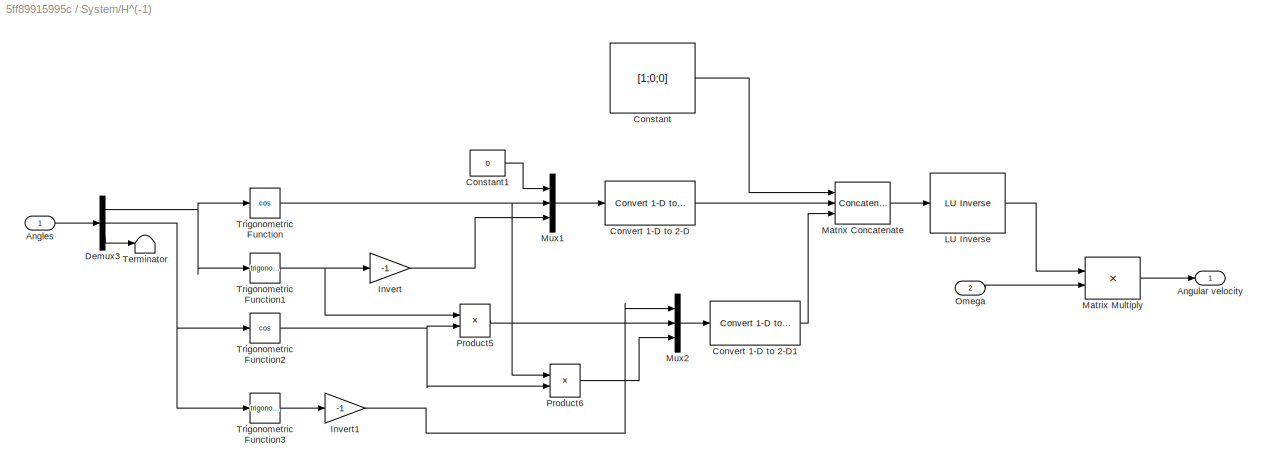
BLOCK [SubSystem] System/H^(-1)
  Ports = [2, 1]
  RequestExecContextInheritance = off
BLOCK [Reference] System/H^(-1)/ LU Inverse  REF=dspinverses/ LU Inverse
  Ports = [1, 1]
  SourceBlock = dspinverses/ LU Inverse
  SourceType = LU Inverse
BLOCK [Inport] System/H^(-1)/Angles 
  IconDisplay = Port number
BLOCK [Outport] System/H^(-1)/Angular velocity
  IconDisplay = Port number
BLOCK [Constant] System/H^(-1)/Constant
  Value = [1;0;0]
  VectorParams1D = off
BLOCK [Constant] System/H^(-1)/Constant1
  Value = 0
BLOCK [Reference] System/H^(-1)/Convert 1-D to 2-D  REF=dspsigattribs/Convert 1-D to 2-D
  M = 3
  N = 1
  Ports = [1, 1]
  SourceBlock = dspsigattribs/Convert 1-D to 2-D
  SourceType = Convert 1-D to 2-D
  frameBasedOut = off
BLOCK [Reference] System/H^(-1)/Convert 1-D to 2-D1  REF=dspsigattribs/Convert 1-D to 2-D
  M = 3
  N = 1
  Ports = [1, 1]
  SourceBlock = dspsigattribs/Convert 1-D to 2-D
  SourceType = Convert 1-D to 2-D
  frameBasedOut = off
BLOCK [Demux] System/H^(-1)/Demux3
  DisplayOption = bar
  Outputs = 3
  Ports = [1, 3]
BLOCK [Gain] System/H^(-1)/Invert
  Gain = -1
  OutDataTypeStr = Inherit: Inherit via internal rule
  ParamDataTypeStr = Inherit: Inherit via internal rule
  SaturateOnIntegerOverflow = off
BLOCK [Gain] System/H^(-1)/Invert1
  Gain = -1
  OutDataTypeStr = Inherit: Inherit via internal rule
  ParamDataTypeStr = Inherit: Inherit via internal rule
  SaturateOnIntegerOverflow = off
BLOCK [Concatenate] System/H^(-1)/Matrix Concatenate
  ConcatenateDimension = 2
  Mode = Multidimensional array
  NumInputs = 3
  Ports = [3, 1]
BLOCK [Product] System/H^(-1)/Matrix Multiply
  InputSameDT = off
  Multiplication = Matrix(*)
  OutDataTypeStr = Inherit: Inherit via internal rule
  Ports = [2, 1]
  RndMeth = Floor
  SaturateOnIntegerOverflow = off
BLOCK [Mux] System/H^(-1)/Mux1
  DisplayOption = bar
  Inputs = 3
  Ports = [3, 1]
BLOCK [Mux] System/H^(-1)/Mux2
  DisplayOption = bar
  Inputs = 3
  Ports = [3, 1]
BLOCK [Inport] System/H^(-1)/Omega
  IconDisplay = Port number
  Port = 2
BLOCK [Product] System/H^(-1)/Product5
  InputSameDT = off
  OutDataTypeStr = Inherit: Inherit via internal rule
  Ports = [2, 1]
  RndMeth = Floor
  SaturateOnIntegerOverflow = off
BLOCK [Product] System/H^(-1)/Product6
  InputSameDT = off
  OutDataTypeStr = Inherit: Inherit via internal rule
  Ports = [2, 1]
  RndMeth = Floor
  SaturateOnIntegerOverflow = off
BLOCK [Terminator] System/H^(-1)/Terminator
BLOCK [Trigonometry] System/H^(-1)/Trigonometric Function
  Operator = cos
  Ports = [1, 1]
BLOCK [Trigonometry] System/H^(-1)/Trigonometric Function1
  Ports = [1, 1]
BLOCK [Trigonometry] System/H^(-1)/Trigonometric Function2
  Operator = cos
  Ports = [1, 1]
BLOCK [Trigonometry] System/H^(-1)/Trigonometric Function3
  Ports = [1, 1]
BLOCK [Integrator] System/Integrator
  Ports = [1, 1]
BLOCK [Integrator] System/Integrator1
  Ports = [1, 1]
BLOCK [SubSystem] System/Motor to rad//s
  Ports = [1, 1]
  RequestExecContextInheritance = off
BLOCK [Constant] System/Motor to rad//s/Intercept
  Value = 677.87
BLOCK [Outport] System/Motor to rad//s/Motors (rad//s)
  IconDisplay = Port number
BLOCK [Inport] System/Motor to rad//s/Motors (raw)
  IconDisplay = Port number
BLOCK [Gain] System/Motor to rad//s/Slope
  Gain = 6.4056
  OutDataTypeStr = Inherit: Inherit via internal rule
  ParamDataTypeStr = Inherit: Inherit via internal rule
  SaturateOnIntegerOverflow = off
BLOCK [Sum] System/Motor to rad//s/Sum
  IconShape = round
  InputSameDT = off
  Inputs = ++|
  OutDataTypeStr = Inherit: Inherit via internal rule
  Ports = [2, 1]
  SaturateOnIntegerOverflow = off
BLOCK [SubSystem] System/Motor to torque
  Ports = [1, 1]
  RequestExecContextInheritance = off
BLOCK [Demux] System/Motor to torque/Demux2
  DisplayOption = bar
  Ports = [1, 4]
BLOCK [Gain] System/Motor to torque/L
  Gain = .18
  OutDataTypeStr = Inherit: Inherit via internal rule
  ParamDataTypeStr = Inherit: Inherit via internal rule
  SaturateOnIntegerOverflow = off
BLOCK [Math] System/Motor to torque/Math Function
  Operator = square
  Ports = [1, 1]
BLOCK [Math] System/Motor to torque/Math Function1
  Operator = square
  Ports = [1, 1]
BLOCK [Math] System/Motor to torque/Math Function2
  Operator = square
  Ports = [1, 1]
BLOCK [Math] System/Motor to torque/Math Function3
  Operator = square
  Ports = [1, 1]
BLOCK [Inport] System/Motor to torque/Motors (rad//s)
  IconDisplay = Port number
BLOCK [Mux] System/Motor to torque/Mux1
  DisplayOption = bar
  Inputs = 2
  Ports = [2, 1]
BLOCK [Mux] System/Motor to torque/Mux3
  DisplayOption = bar
  Inputs = 2
  Ports = [2, 1]
BLOCK [Sum] System/Motor to torque/Sum1
  IconShape = round
  InputSameDT = off
  Inputs = +-+-
  OutDataTypeStr = Inherit: Inherit via internal rule
  Ports = [4, 1]
  SaturateOnIntegerOverflow = off
BLOCK [Sum] System/Motor to torque/Sum2
  IconShape = round
  InputSameDT = off
  Inputs = --++
  OutDataTypeStr = Inherit: Inherit via internal rule
  Ports = [4, 1]
  SaturateOnIntegerOverflow = off
BLOCK [Sum] System/Motor to torque/Sum3
  IconShape = round
  InputSameDT = off
  Inputs = -++-
  OutDataTypeStr = Inherit: Inherit via internal rule
  Ports = [4, 1]
  SaturateOnIntegerOverflow = off
BLOCK [Gain] System/Motor to torque/b
  Gain = 7.46*10^(-6)
  OutDataTypeStr = Inherit: Inherit via internal rule
  ParamDataTypeStr = Inherit: Inherit via internal rule
  SaturateOnIntegerOverflow = off
BLOCK [Gain] System/Motor to torque/d
  Gain = 48.864*10^(-9)
  OutDataTypeStr = Inherit: Inherit via internal rule
  ParamDataTypeStr = Inherit: Inherit via internal rule
  SaturateOnIntegerOverflow = off
BLOCK [Outport] System/Motor to torque/tau
  IconDisplay = Port number
BLOCK [Inport] System/Motors (raw)
  IconDisplay = Port number
BLOCK [Outport] System/Omega (rad//s)
  IconDisplay = Port number
  Port = 3
BLOCK [Inport] System/Omega (rad//s) 
  IconDisplay = Port number
  Port = 3
BLOCK [ToWorkspace] To Workspace
  FixptAsFi = on
  MaxDataPoints = inf
  Ports = [1]
  SampleTime = -1
  Save2DSignal = 3-D array (concatenate along third dimension)
  SaveFormat = Timeseries
  VariableName = simout
ANNOTATION Controller: The altitude hold controller will pass through throttle if not both self-level (AUX1 > -10) and althold is activated (AUX2 > 0)
ANNOTATION Controller: The self-level controller will pass through aileron and elevator stick inputs if AUX1 < -10 The heading hold controller will pass through rudder if AUX1 < 50
ANNOTATION Controller/Altitude hold PID controller: Kp = 0.040, Ki = 0.03, Kd = 0.0035 I-limit = +-10
ANNOTATION Controller/Altitude hold PID controller/PID Controller (altitude): +-10
ANNOTATION Controller/Altitude hold PID controller/PID Controller (altitude): http://www.mathworks.com/matlabcentral/answers/111085-pid-block-and-manual-pid
ANNOTATION Controller/Mixer: Motor 1 is bottom right Motor 2 is top right Motor 3 is bottom left Motor 4 is top left
ANNOTATION Controller/PID rate controller (roll, pitch & yaw): Kp = 0.310, Ki = 1.65, Kd = 0.00040 I-limit = +-5.85
ANNOTATION Controller/PID rate controller (roll, pitch & yaw): Kp = 1, Ki = 6, Kd = 0.00040 I-limit = +-10
ANNOTATION Controller/PID rate controller (roll, pitch & yaw)/PID Controller (pitch): +-5.85
ANNOTATION Controller/PID rate controller (roll, pitch & yaw)/PID Controller (pitch): http://www.mathworks.com/matlabcentral/answers/111085-pid-block-and-manual-pid
ANNOTATION Controller/PID rate controller (roll, pitch & yaw)/PID Controller (roll): +-5.85
ANNOTATION Controller/PID rate controller (roll, pitch & yaw)/PID Controller (roll): http://www.mathworks.com/matlabcentral/answers/111085-pid-block-and-manual-pid
ANNOTATION Controller/PID rate controller (roll, pitch & yaw)/PID Controller (yaw): +-10
ANNOTATION Controller/PID rate controller (roll, pitch & yaw)/PID Controller (yaw): http://www.mathworks.com/matlabcentral/answers/111085-pid-block-and-manual-pid
ANNOTATION Controller/Self-level and heading hold P controller (roll, pitch & yaw)/Heading hold P controller (yaw): Kp = 0.65
ANNOTATION Controller/Self-level and heading hold P controller (roll, pitch & yaw)/Self-level P controller (pitch): Kp = 4.5
ANNOTATION Controller/Self-level and heading hold P controller (roll, pitch & yaw)/Self-level P controller (roll): Kp = 4.5
ANNOTATION System/Motor to rad//s: Convert motor out to rad/s
ANNOTATION System/Motor to torque: Convert into torque
ANNOTATION System/Motor to torque: Motor 1
ANNOTATION System/Motor to torque: Motor 1 is bottom right Motor 2 is top right Motor 3 is bottom left Motor 4 is top left
ANNOTATION System/Motor to torque: Motor 2
ANNOTATION System/Motor to torque: Motor 3
ANNOTATION System/Motor to torque: Motor 4
ANNOTATION System/Motor to torque: Thrust force
ANNOTATION System/Motor to torque: Torque roll & pitch
ANNOTATION System/Motor to torque: Torque yaw
NET Constant:1 -> Controller:7, Controller:8, Step MagHold:2, Step pitch:2, Step roll:2, Step yaw:2
NET Controller/AUX1:1 -> Controller/Altitude hold PID controller:4, Controller/Self-level and heading hold P controller (roll, pitch & yaw):3
LINE Controller/AUX2:1 -> Controller/Altitude hold PID controller:3
LINE Controller/Aileron:1 -> Controller/Mux2:1
LINE Controller/Altitude hold PID controller/Activate althold:1 -> Controller/Altitude hold PID controller/Self-level:1
LINE Controller/Altitude hold PID controller/Altitude hold:1 -> Controller/Altitude hold PID controller/Throttle out:1
LINE Controller/Altitude hold PID controller/Constrain output:1 -> Controller/Altitude hold PID controller/Altitude hold:1
LINE Controller/Altitude hold PID controller/Constrain:1 -> Controller/Altitude hold PID controller/Sum7:2
LINE Controller/Altitude hold PID controller/Deactivate:1 -> Controller/Altitude hold PID controller/Self-level:3
LINE Controller/Altitude hold PID controller/Input:1 -> Controller/Altitude hold PID controller/Sum7:1
NET Controller/Altitude hold PID controller/PID Controller (altitude)/Error:1 -> Controller/Altitude hold PID controller/PID Controller (altitude)/Kd:1, Controller/Altitude hold PID controller/PID Controller (altitude)/Ki:1, Controller/Altitude hold PID controller/PID Controller (altitude)/Kp:1
NET Controller/Altitude hold PID controller/PID Controller (altitude)/Filter coefficient:1 -> Controller/Altitude hold PID controller/PID Controller (altitude)/Integrator1:1, Controller/Altitude hold PID controller/PID Controller (altitude)/Sum1:3
LINE Controller/Altitude hold PID controller/PID Controller (altitude)/Integrator1:1 -> Controller/Altitude hold PID controller/PID Controller (altitude)/Sum2:2
LINE Controller/Altitude hold PID controller/PID Controller (altitude)/Integrator:1 -> Controller/Altitude hold PID controller/PID Controller (altitude)/Windup:1
LINE Controller/Altitude hold PID controller/PID Controller (altitude)/Kd:1 -> Controller/Altitude hold PID controller/PID Controller (altitude)/Sum2:1
LINE Controller/Altitude hold PID controller/PID Controller (altitude)/Ki:1 -> Controller/Altitude hold PID controller/PID Controller (altitude)/Integrator:1
LINE Controller/Altitude hold PID controller/PID Controller (altitude)/Kp:1 -> Controller/Altitude hold PID controller/PID Controller (altitude)/Sum1:1
LINE Controller/Altitude hold PID controller/PID Controller (altitude)/Sum1:1 -> Controller/Altitude hold PID controller/PID Controller (altitude)/Output:1
LINE Controller/Altitude hold PID controller/PID Controller (altitude)/Sum2:1 -> Controller/Altitude hold PID controller/PID Controller (altitude)/Filter coefficient:1
LINE Controller/Altitude hold PID controller/PID Controller (altitude)/Windup:1 -> Controller/Altitude hold PID controller/PID Controller (altitude)/Sum1:2
LINE Controller/Altitude hold PID controller/PID Controller (altitude):1 -> Controller/Altitude hold PID controller/Sum12:2
LINE Controller/Altitude hold PID controller/Self-level activated?:1 -> Controller/Altitude hold PID controller/Self-level:2
LINE Controller/Altitude hold PID controller/Self-level:1 -> Controller/Altitude hold PID controller/Altitude hold:2
NET Controller/Altitude hold PID controller/Set point:1 -> Controller/Altitude hold PID controller/Altitude hold:3, Controller/Altitude hold PID controller/mapf:1
LINE Controller/Altitude hold PID controller/Sum12:1 -> Controller/Altitude hold PID controller/Constrain output:1
LINE Controller/Altitude hold PID controller/Sum7:1 -> Controller/Altitude hold PID controller/PID Controller (altitude):1
LINE Controller/Altitude hold PID controller/altHoldInitialThrottle:1 -> Controller/Altitude hold PID controller/Sum12:1
LINE Controller/Altitude hold PID controller/mapf:1 -> Controller/Altitude hold PID controller/Constrain:1
LINE Controller/Altitude hold PID controller:1 -> Controller/Mixer:1
LINE Controller/Angles (deg):1 -> Controller/Self-level and heading hold P controller (roll, pitch & yaw):1
LINE Controller/Angular velocity (deg//s):1 -> Controller/PID rate controller (roll, pitch & yaw):1
LINE Controller/Elevator:1 -> Controller/Mux2:2
LINE Controller/MagHold:1 -> Controller/Mux2:3
NET Controller/Mixer/Demux:1 -> Controller/Mixer/Sum1:2, Controller/Mixer/Sum2:2, Controller/Mixer/Sum3:2, Controller/Mixer/Sum:2
NET Controller/Mixer/Demux:2 -> Controller/Mixer/Sum1:3, Controller/Mixer/Sum2:3, Controller/Mixer/Sum3:3, Controller/Mixer/Sum:3
NET Controller/Mixer/Demux:3 -> Controller/Mixer/Sum1:4, Controller/Mixer/Sum2:4, Controller/Mixer/Sum3:4, Controller/Mixer/Sum:4
LINE Controller/Mixer/Mux1:1 -> Controller/Mixer/Motors:1
LINE Controller/Mixer/PID input:1 -> Controller/Mixer/Demux:1
LINE Controller/Mixer/Sum1:1 -> Controller/Mixer/Mux1:2
LINE Controller/Mixer/Sum2:1 -> Controller/Mixer/Mux1:3
LINE Controller/Mixer/Sum3:1 -> Controller/Mixer/Mux1:4
LINE Controller/Mixer/Sum:1 -> Controller/Mixer/Mux1:1
NET Controller/Mixer/Throttle:1 -> Controller/Mixer/Sum1:1, Controller/Mixer/Sum2:1, Controller/Mixer/Sum3:1, Controller/Mixer/Sum:1
LINE Controller/Mixer:1 -> Controller/Motor saturation:1
LINE Controller/Motor saturation/If:1 -> Controller/Motor saturation/Subtract difference:ifaction
LINE Controller/Motor saturation/If:2 -> Controller/Motor saturation/Passthrough:ifaction
NET Controller/Motor saturation/Max output:1 -> Controller/Motor saturation/If:1, Controller/Motor saturation/Sum13:1
LINE Controller/Motor saturation/Merge:1 -> Controller/Motor saturation/Motors out:1
NET Controller/Motor saturation/MinMax:1 -> Controller/Motor saturation/If:2, Controller/Motor saturation/Sum13:2
NET Controller/Motor saturation/Motors in:1 -> Controller/Motor saturation/MinMax:1, Controller/Motor saturation/Passthrough:1, Controller/Motor saturation/Subtract difference:2
LINE Controller/Motor saturation/Passthrough/In1:1 -> Controller/Motor saturation/Passthrough/Out1:1
LINE Controller/Motor saturation/Passthrough:1 -> Controller/Motor saturation/Merge:2
LINE Controller/Motor saturation/Subtract difference/Difference:1 -> Controller/Motor saturation/Subtract difference/Sum:2
LINE Controller/Motor saturation/Subtract difference/Motors:1 -> Controller/Motor saturation/Subtract difference/Sum:1
LINE Controller/Motor saturation/Subtract difference/Sum:1 -> Controller/Motor saturation/Subtract difference/Out1:1
LINE Controller/Motor saturation/Subtract difference:1 -> Controller/Motor saturation/Merge:1
LINE Controller/Motor saturation/Sum13:1 -> Controller/Motor saturation/Subtract difference:1
LINE Controller/Motor saturation:1 -> Controller/Motors (raw):1
NET Controller/Mux2:1 -> Controller/Self-level and heading hold P controller (roll, pitch & yaw):2, Controller/Set point (angle):1
LINE Controller/PID rate controller (roll, pitch & yaw)/Demux1:1 -> Controller/PID rate controller (roll, pitch & yaw)/PID Controller (roll):1
LINE Controller/PID rate controller (roll, pitch & yaw)/Demux1:2 -> Controller/PID rate controller (roll, pitch & yaw)/PID Controller (pitch):1
LINE Controller/PID rate controller (roll, pitch & yaw)/Demux1:3 -> Controller/PID rate controller (roll, pitch & yaw)/PID Controller (yaw):1
LINE Controller/PID rate controller (roll, pitch & yaw)/Input:1 -> Controller/PID rate controller (roll, pitch & yaw)/Sum10:1
LINE Controller/PID rate controller (roll, pitch & yaw)/Mux:1 -> Controller/PID rate controller (roll, pitch & yaw)/PID output:1
NET Controller/PID rate controller (roll, pitch & yaw)/PID Controller (pitch)/Error:1 -> Controller/PID rate controller (roll, pitch & yaw)/PID Controller (pitch)/Kd:1, Controller/PID rate controller (roll, pitch & yaw)/PID Controller (pitch)/Ki:1, Controller/PID rate controller (roll, pitch & yaw)/PID Controller (pitch)/Kp:1
NET Controller/PID rate controller (roll, pitch & yaw)/PID Controller (pitch)/Filter coefficient:1 -> Controller/PID rate controller (roll, pitch & yaw)/PID Controller (pitch)/Integrator1:1, Controller/PID rate controller (roll, pitch & yaw)/PID Controller (pitch)/Sum:3
LINE Controller/PID rate controller (roll, pitch & yaw)/PID Controller (pitch)/Integrator1:1 -> Controller/PID rate controller (roll, pitch & yaw)/PID Controller (pitch)/Sum1:2
LINE Controller/PID rate controller (roll, pitch & yaw)/PID Controller (pitch)/Integrator:1 -> Controller/PID rate controller (roll, pitch & yaw)/PID Controller (pitch)/Windup:1
LINE Controller/PID rate controller (roll, pitch & yaw)/PID Controller (pitch)/Kd:1 -> Controller/PID rate controller (roll, pitch & yaw)/PID Controller (pitch)/Sum1:1
LINE Controller/PID rate controller (roll, pitch & yaw)/PID Controller (pitch)/Ki:1 -> Controller/PID rate controller (roll, pitch & yaw)/PID Controller (pitch)/Integrator:1
LINE Controller/PID rate controller (roll, pitch & yaw)/PID Controller (pitch)/Kp:1 -> Controller/PID rate controller (roll, pitch & yaw)/PID Controller (pitch)/Sum:1
LINE Controller/PID rate controller (roll, pitch & yaw)/PID Controller (pitch)/Sum1:1 -> Controller/PID rate controller (roll, pitch & yaw)/PID Controller (pitch)/Filter coefficient:1
LINE Controller/PID rate controller (roll, pitch & yaw)/PID Controller (pitch)/Sum:1 -> Controller/PID rate controller (roll, pitch & yaw)/PID Controller (pitch)/Output:1
LINE Controller/PID rate controller (roll, pitch & yaw)/PID Controller (pitch)/Windup:1 -> Controller/PID rate controller (roll, pitch & yaw)/PID Controller (pitch)/Sum:2
LINE Controller/PID rate controller (roll, pitch & yaw)/PID Controller (pitch):1 -> Controller/PID rate controller (roll, pitch & yaw)/Mux:2
NET Controller/PID rate controller (roll, pitch & yaw)/PID Controller (roll)/Error:1 -> Controller/PID rate controller (roll, pitch & yaw)/PID Controller (roll)/Kd:1, Controller/PID rate controller (roll, pitch & yaw)/PID Controller (roll)/Ki:1, Controller/PID rate controller (roll, pitch & yaw)/PID Controller (roll)/Kp:1
NET Controller/PID rate controller (roll, pitch & yaw)/PID Controller (roll)/Filter coefficient:1 -> Controller/PID rate controller (roll, pitch & yaw)/PID Controller (roll)/Integrator1:1, Controller/PID rate controller (roll, pitch & yaw)/PID Controller (roll)/Sum:3
LINE Controller/PID rate controller (roll, pitch & yaw)/PID Controller (roll)/Integrator1:1 -> Controller/PID rate controller (roll, pitch & yaw)/PID Controller (roll)/Sum1:2
LINE Controller/PID rate controller (roll, pitch & yaw)/PID Controller (roll)/Integrator:1 -> Controller/PID rate controller (roll, pitch & yaw)/PID Controller (roll)/Windup:1
LINE Controller/PID rate controller (roll, pitch & yaw)/PID Controller (roll)/Kd:1 -> Controller/PID rate controller (roll, pitch & yaw)/PID Controller (roll)/Sum1:1
LINE Controller/PID rate controller (roll, pitch & yaw)/PID Controller (roll)/Ki:1 -> Controller/PID rate controller (roll, pitch & yaw)/PID Controller (roll)/Integrator:1
LINE Controller/PID rate controller (roll, pitch & yaw)/PID Controller (roll)/Kp:1 -> Controller/PID rate controller (roll, pitch & yaw)/PID Controller (roll)/Sum:1
LINE Controller/PID rate controller (roll, pitch & yaw)/PID Controller (roll)/Sum1:1 -> Controller/PID rate controller (roll, pitch & yaw)/PID Controller (roll)/Filter coefficient:1
LINE Controller/PID rate controller (roll, pitch & yaw)/PID Controller (roll)/Sum:1 -> Controller/PID rate controller (roll, pitch & yaw)/PID Controller (roll)/Output:1
LINE Controller/PID rate controller (roll, pitch & yaw)/PID Controller (roll)/Windup:1 -> Controller/PID rate controller (roll, pitch & yaw)/PID Controller (roll)/Sum:2
LINE Controller/PID rate controller (roll, pitch & yaw)/PID Controller (roll):1 -> Controller/PID rate controller (roll, pitch & yaw)/Mux:1
NET Controller/PID rate controller (roll, pitch & yaw)/PID Controller (yaw)/Error:1 -> Controller/PID rate controller (roll, pitch & yaw)/PID Controller (yaw)/Kd:1, Controller/PID rate controller (roll, pitch & yaw)/PID Controller (yaw)/Ki:1, Controller/PID rate controller (roll, pitch & yaw)/PID Controller (yaw)/Kp:1
NET Controller/PID rate controller (roll, pitch & yaw)/PID Controller (yaw)/Filter coefficient:1 -> Controller/PID rate controller (roll, pitch & yaw)/PID Controller (yaw)/Integrator1:1, Controller/PID rate controller (roll, pitch & yaw)/PID Controller (yaw)/Sum1:3
LINE Controller/PID rate controller (roll, pitch & yaw)/PID Controller (yaw)/Integrator1:1 -> Controller/PID rate controller (roll, pitch & yaw)/PID Controller (yaw)/Sum2:2
LINE Controller/PID rate controller (roll, pitch & yaw)/PID Controller (yaw)/Integrator:1 -> Controller/PID rate controller (roll, pitch & yaw)/PID Controller (yaw)/Windup:1
LINE Controller/PID rate controller (roll, pitch & yaw)/PID Controller (yaw)/Kd:1 -> Controller/PID rate controller (roll, pitch & yaw)/PID Controller (yaw)/Sum2:1
LINE Controller/PID rate controller (roll, pitch & yaw)/PID Controller (yaw)/Ki:1 -> Controller/PID rate controller (roll, pitch & yaw)/PID Controller (yaw)/Integrator:1
LINE Controller/PID rate controller (roll, pitch & yaw)/PID Controller (yaw)/Kp:1 -> Controller/PID rate controller (roll, pitch & yaw)/PID Controller (yaw)/Sum1:1
LINE Controller/PID rate controller (roll, pitch & yaw)/PID Controller (yaw)/Sum1:1 -> Controller/PID rate controller (roll, pitch & yaw)/PID Controller (yaw)/Output:1
LINE Controller/PID rate controller (roll, pitch & yaw)/PID Controller (yaw)/Sum2:1 -> Controller/PID rate controller (roll, pitch & yaw)/PID Controller (yaw)/Filter coefficient:1
LINE Controller/PID rate controller (roll, pitch & yaw)/PID Controller (yaw)/Windup:1 -> Controller/PID rate controller (roll, pitch & yaw)/PID Controller (yaw)/Sum1:2
LINE Controller/PID rate controller (roll, pitch & yaw)/PID Controller (yaw):1 -> Controller/PID rate controller (roll, pitch & yaw)/Mux:3
LINE Controller/PID rate controller (roll, pitch & yaw)/Set point:1 -> Controller/PID rate controller (roll, pitch & yaw)/Sum10:2
LINE Controller/PID rate controller (roll, pitch & yaw)/Sum10:1 -> Controller/PID rate controller (roll, pitch & yaw)/Demux1:1
LINE Controller/PID rate controller (roll, pitch & yaw):1 -> Controller/Mixer:2
LINE Controller/Rudder:1 -> Controller/Self-level and heading hold P controller (roll, pitch & yaw):4
NET Controller/Self-level and heading hold P controller (roll, pitch & yaw)/Activate self-level//heading hold:1 -> Controller/Self-level and heading hold P controller (roll, pitch & yaw)/Heading hold P controller (yaw):1, Controller/Self-level and heading hold P controller (roll, pitch & yaw)/Self-level P controller (pitch):1, Controller/Self-level and heading hold P controller (roll, pitch & yaw)/Self-level P controller (roll):1
LINE Controller/Self-level and heading hold P controller (roll, pitch & yaw)/Demux1:1 -> Controller/Self-level and heading hold P controller (roll, pitch & yaw)/Self-level P controller (roll):2
LINE Controller/Self-level and heading hold P controller (roll, pitch & yaw)/Demux1:2 -> Controller/Self-level and heading hold P controller (roll, pitch & yaw)/Self-level P controller (pitch):2
LINE Controller/Self-level and heading hold P controller (roll, pitch & yaw)/Demux1:3 -> Controller/Self-level and heading hold P controller (roll, pitch & yaw)/Heading hold P controller (yaw):2
LINE Controller/Self-level and heading hold P controller (roll, pitch & yaw)/Demux2:1 -> Controller/Self-level and heading hold P controller (roll, pitch & yaw)/Self-level P controller (roll):3
LINE Controller/Self-level and heading hold P controller (roll, pitch & yaw)/Demux2:2 -> Controller/Self-level and heading hold P controller (roll, pitch & yaw)/Self-level P controller (pitch):3
LINE Controller/Self-level and heading hold P controller (roll, pitch & yaw)/Demux2:3 -> Controller/Self-level and heading hold P controller (roll, pitch & yaw)/Heading hold P controller (yaw):3
LINE Controller/Self-level and heading hold P controller (roll, pitch & yaw)/Heading hold P controller (yaw)/Activated:1 -> Controller/Self-level and heading hold P controller (roll, pitch & yaw)/Heading hold P controller (yaw)/Heading hold?:2
LINE Controller/Self-level and heading hold P controller (roll, pitch & yaw)/Heading hold P controller (yaw)/Heading hold?:1 -> Controller/Self-level and heading hold P controller (roll, pitch & yaw)/Heading hold P controller (yaw)/Stick scaling yaw:1
LINE Controller/Self-level and heading hold P controller (roll, pitch & yaw)/Heading hold P controller (yaw)/Input:1 -> Controller/Self-level and heading hold P controller (roll, pitch & yaw)/Heading hold P controller (yaw)/Sum6:1
LINE Controller/Self-level and heading hold P controller (roll, pitch & yaw)/Heading hold P controller (yaw)/P Controller (heading):1 -> Controller/Self-level and heading hold P controller (roll, pitch & yaw)/Heading hold P controller (yaw)/Sum11:1
NET Controller/Self-level and heading hold P controller (roll, pitch & yaw)/Heading hold P controller (yaw)/Rudder:1 -> Controller/Self-level and heading hold P controller (roll, pitch & yaw)/Heading hold P controller (yaw)/Heading hold?:3, Controller/Self-level and heading hold P controller (roll, pitch & yaw)/Heading hold P controller (yaw)/Sum11:2
LINE Controller/Self-level and heading hold P controller (roll, pitch & yaw)/Heading hold P controller (yaw)/Set point:1 -> Controller/Self-level and heading hold P controller (roll, pitch & yaw)/Heading hold P controller (yaw)/Sum6:2
LINE Controller/Self-level and heading hold P controller (roll, pitch & yaw)/Heading hold P controller (yaw)/Stick scaling yaw:1 -> Controller/Self-level and heading hold P controller (roll, pitch & yaw)/Heading hold P controller (yaw)/Out:1
LINE Controller/Self-level and heading hold P controller (roll, pitch & yaw)/Heading hold P controller (yaw)/Sum11:1 -> Controller/Self-level and heading hold P controller (roll, pitch & yaw)/Heading hold P controller (yaw)/Heading hold?:1
LINE Controller/Self-level and heading hold P controller (roll, pitch & yaw)/Heading hold P controller (yaw)/Sum6:1 -> Controller/Self-level and heading hold P controller (roll, pitch & yaw)/Heading hold P controller (yaw)/P Controller (heading):1
LINE Controller/Self-level and heading hold P controller (roll, pitch & yaw)/Heading hold P controller (yaw):1 -> Controller/Self-level and heading hold P controller (roll, pitch & yaw)/Mux2:3
LINE Controller/Self-level and heading hold P controller (roll, pitch & yaw)/Input:1 -> Controller/Self-level and heading hold P controller (roll, pitch & yaw)/Demux1:1
LINE Controller/Self-level and heading hold P controller (roll, pitch & yaw)/Mux2:1 -> Controller/Self-level and heading hold P controller (roll, pitch & yaw)/Out:1
LINE Controller/Self-level and heading hold P controller (roll, pitch & yaw)/Rudder:1 -> Controller/Self-level and heading hold P controller (roll, pitch & yaw)/Heading hold P controller (yaw):4
LINE Controller/Self-level and heading hold P controller (roll, pitch & yaw)/Self-level P controller (pitch)/Activated:1 -> Controller/Self-level and heading hold P controller (roll, pitch & yaw)/Self-level P controller (pitch)/Self-level (pitch)?:2
LINE Controller/Self-level and heading hold P controller (roll, pitch & yaw)/Self-level P controller (pitch)/Constrain angle :1 -> Controller/Self-level and heading hold P controller (roll, pitch & yaw)/Self-level P controller (pitch)/Sum5:2
LINE Controller/Self-level and heading hold P controller (roll, pitch & yaw)/Self-level P controller (pitch)/Input:1 -> Controller/Self-level and heading hold P controller (roll, pitch & yaw)/Self-level P controller (pitch)/Sum5:1
LINE Controller/Self-level and heading hold P controller (roll, pitch & yaw)/Self-level P controller (pitch)/P Controller (self-level pitch):1 -> Controller/Self-level and heading hold P controller (roll, pitch & yaw)/Self-level P controller (pitch)/Self-level (pitch)?:1
LINE Controller/Self-level and heading hold P controller (roll, pitch & yaw)/Self-level P controller (pitch)/Self-level (pitch)?:1 -> Controller/Self-level and heading hold P controller (roll, pitch & yaw)/Self-level P controller (pitch)/Out:1
NET Controller/Self-level and heading hold P controller (roll, pitch & yaw)/Self-level P controller (pitch)/Set point:1 -> Controller/Self-level and heading hold P controller (roll, pitch & yaw)/Self-level P controller (pitch)/Constrain angle :1, Controller/Self-level and heading hold P controller (roll, pitch & yaw)/Self-level P controller (pitch)/Stick scaling pitch:1
LINE Controller/Self-level and heading hold P controller (roll, pitch & yaw)/Self-level P controller (pitch)/Stick scaling pitch:1 -> Controller/Self-level and heading hold P controller (roll, pitch & yaw)/Self-level P controller (pitch)/Self-level (pitch)?:3
LINE Controller/Self-level and heading hold P controller (roll, pitch & yaw)/Self-level P controller (pitch)/Sum5:1 -> Controller/Self-level and heading hold P controller (roll, pitch & yaw)/Self-level P controller (pitch)/P Controller (self-level pitch):1
LINE Controller/Self-level and heading hold P controller (roll, pitch & yaw)/Self-level P controller (pitch):1 -> Controller/Self-level and heading hold P controller (roll, pitch & yaw)/Mux2:2
LINE Controller/Self-level and heading hold P controller (roll, pitch & yaw)/Self-level P controller (roll)/Activated:1 -> Controller/Self-level and heading hold P controller (roll, pitch & yaw)/Self-level P controller (roll)/Self-level (roll)?:2
LINE Controller/Self-level and heading hold P controller (roll, pitch & yaw)/Self-level P controller (roll)/Constrain angle:1 -> Controller/Self-level and heading hold P controller (roll, pitch & yaw)/Self-level P controller (roll)/Sum4:2
LINE Controller/Self-level and heading hold P controller (roll, pitch & yaw)/Self-level P controller (roll)/Input:1 -> Controller/Self-level and heading hold P controller (roll, pitch & yaw)/Self-level P controller (roll)/Sum4:1
LINE Controller/Self-level and heading hold P controller (roll, pitch & yaw)/Self-level P controller (roll)/P Controller (self-level roll):1 -> Controller/Self-level and heading hold P controller (roll, pitch & yaw)/Self-level P controller (roll)/Self-level (roll)?:1
LINE Controller/Self-level and heading hold P controller (roll, pitch & yaw)/Self-level P controller (roll)/Self-level (roll)?:1 -> Controller/Self-level and heading hold P controller (roll, pitch & yaw)/Self-level P controller (roll)/Out:1
NET Controller/Self-level and heading hold P controller (roll, pitch & yaw)/Self-level P controller (roll)/Set point:1 -> Controller/Self-level and heading hold P controller (roll, pitch & yaw)/Self-level P controller (roll)/Constrain angle:1, Controller/Self-level and heading hold P controller (roll, pitch & yaw)/Self-level P controller (roll)/Stick scaling roll:1
LINE Controller/Self-level and heading hold P controller (roll, pitch & yaw)/Self-level P controller (roll)/Stick scaling roll:1 -> Controller/Self-level and heading hold P controller (roll, pitch & yaw)/Self-level P controller (roll)/Self-level (roll)?:3
LINE Controller/Self-level and heading hold P controller (roll, pitch & yaw)/Self-level P controller (roll)/Sum4:1 -> Controller/Self-level and heading hold P controller (roll, pitch & yaw)/Self-level P controller (roll)/P Controller (self-level roll):1
LINE Controller/Self-level and heading hold P controller (roll, pitch & yaw)/Self-level P controller (roll):1 -> Controller/Self-level and heading hold P controller (roll, pitch & yaw)/Mux2:1
LINE Controller/Self-level and heading hold P controller (roll, pitch & yaw)/Set point:1 -> Controller/Self-level and heading hold P controller (roll, pitch & yaw)/Demux2:1
NET Controller/Self-level and heading hold P controller (roll, pitch & yaw):1 -> Controller/PID rate controller (roll, pitch & yaw):2, Controller/Set point (rate):1
LINE Controller/Sonar:1 -> Controller/Altitude hold PID controller:1
LINE Controller/Throttle:1 -> Controller/Altitude hold PID controller:2
LINE Controller:1 -> System:1
LINE Controller:2 -> Demux:1
LINE Controller:3 -> Demux2:1
LINE Demux1:1 -> Mux2:2
LINE Demux1:2 -> Mux1:2
LINE Demux1:3 -> Mux:2
LINE Demux2:1 -> Mux6:1
LINE Demux2:2 -> Mux5:1
LINE Demux2:3 -> Mux4:1
LINE Demux3:1 -> Mux6:2
LINE Demux3:2 -> Mux5:2
LINE Demux3:3 -> Mux4:2
LINE Demux:1 -> Mux2:1
LINE Demux:2 -> Mux1:1
LINE Demux:3 -> Mux:1
NET Gain:1 -> Step MagHold:1, Step pitch:1, Step roll:1, Step yaw:1
LINE Hover throttle:1 -> Controller:5
LINE Mux1:1 -> Step response pitch (rate):1
NET Mux2:1 -> Step response roll (rate):1, To Workspace:1
LINE Mux4:1 -> Step response yaw (angle):1
LINE Mux5:1 -> Step response pitch (angle):1
LINE Mux6:1 -> Step response roll (angle):1
LINE Mux:1 -> Step response yaw (rate):1
NET Rad to deg1:1 -> Angular velocity:1, Controller:10, Demux1:1
LINE Rad to deg2:1 -> Omega:1
NET Rad to deg:1 -> Angles:1, Controller:9, Demux3:1
LINE Self-level & heading hold:1 -> Controller:6
LINE Step MagHold:1 -> Controller:4
LINE Step pitch:1 -> Controller:2
LINE Step roll:1 -> Controller:1
LINE Step yaw:1 -> Controller:3
LINE Step:1 -> Gain:1
LINE System/Angles (rad) :1 -> System/H^(-1):1
LINE System/Euler rotation/1//Ixx:1 -> System/Euler rotation/Mux4:1
LINE System/Euler rotation/1//Iyy1:1 -> System/Euler rotation/Mux4:3
LINE System/Euler rotation/1//Iyy:1 -> System/Euler rotation/Mux4:2
NET System/Euler rotation/Demux1:1 -> System/Euler rotation/Product2:2, System/Euler rotation/Product5:2
NET System/Euler rotation/Demux1:2 -> System/Euler rotation/Product5:3, System/Euler rotation/Product:2
NET System/Euler rotation/Demux1:3 -> System/Euler rotation/Product2:3, System/Euler rotation/Product:3
LINE System/Euler rotation/Demux2:1 -> System/Euler rotation/Sum5:1
LINE System/Euler rotation/Demux2:2 -> System/Euler rotation/Sum9:1
LINE System/Euler rotation/Demux2:3 -> System/Euler rotation/Sum12:1
NET System/Euler rotation/Ixx:1 -> System/Euler rotation/1//Ixx:2, System/Euler rotation/Sum11:2, System/Euler rotation/Sum8:1
NET System/Euler rotation/Iyy:1 -> System/Euler rotation/1//Iyy:2, System/Euler rotation/Sum11:1, System/Euler rotation/Sum4:2
NET System/Euler rotation/Izz:1 -> System/Euler rotation/1//Iyy1:2, System/Euler rotation/Sum4:1, System/Euler rotation/Sum8:2
LINE System/Euler rotation/Mux4:1 -> System/Euler rotation/dot_omega:1
LINE System/Euler rotation/Product2:1 -> System/Euler rotation/Sum9:2
LINE System/Euler rotation/Product5:1 -> System/Euler rotation/Sum12:2
LINE System/Euler rotation/Product:1 -> System/Euler rotation/Sum5:2
LINE System/Euler rotation/Sum11:1 -> System/Euler rotation/Product5:1
LINE System/Euler rotation/Sum12:1 -> System/Euler rotation/1//Iyy1:1
LINE System/Euler rotation/Sum4:1 -> System/Euler rotation/Product:1
LINE System/Euler rotation/Sum5:1 -> System/Euler rotation/1//Ixx:1
LINE System/Euler rotation/Sum8:1 -> System/Euler rotation/Product2:1
LINE System/Euler rotation/Sum9:1 -> System/Euler rotation/1//Iyy:1
LINE System/Euler rotation/omega:1 -> System/Euler rotation/Demux1:1
LINE System/Euler rotation/tau:1 -> System/Euler rotation/Demux2:1
LINE System/Euler rotation:1 -> System/Integrator:1
LINE System/H^(-1)/ LU Inverse:1 -> System/H^(-1)/Matrix Multiply:1
LINE System/H^(-1)/Angles :1 -> System/H^(-1)/Demux3:1
LINE System/H^(-1)/Constant1:1 -> System/H^(-1)/Mux1:1
LINE System/H^(-1)/Constant:1 -> System/H^(-1)/Matrix Concatenate:1
LINE System/H^(-1)/Convert 1-D to 2-D1:1 -> System/H^(-1)/Matrix Concatenate:3
LINE System/H^(-1)/Convert 1-D to 2-D:1 -> System/H^(-1)/Matrix Concatenate:2
NET System/H^(-1)/Demux3:1 -> System/H^(-1)/Trigonometric Function1:1, System/H^(-1)/Trigonometric Function:1
NET System/H^(-1)/Demux3:2 -> System/H^(-1)/Trigonometric Function2:1, System/H^(-1)/Trigonometric Function3:1
LINE System/H^(-1)/Demux3:3 -> System/H^(-1)/Terminator:1
LINE System/H^(-1)/Invert1:1 -> System/H^(-1)/Mux2:1
LINE System/H^(-1)/Invert:1 -> System/H^(-1)/Mux1:3
LINE System/H^(-1)/Matrix Concatenate:1 -> System/H^(-1)/ LU Inverse:1
LINE System/H^(-1)/Matrix Multiply:1 -> System/H^(-1)/Angular velocity:1
LINE System/H^(-1)/Mux1:1 -> System/H^(-1)/Convert 1-D to 2-D:1
LINE System/H^(-1)/Mux2:1 -> System/H^(-1)/Convert 1-D to 2-D1:1
LINE System/H^(-1)/Omega:1 -> System/H^(-1)/Matrix Multiply:2
LINE System/H^(-1)/Product5:1 -> System/H^(-1)/Mux2:2
LINE System/H^(-1)/Product6:1 -> System/H^(-1)/Mux2:3
NET System/H^(-1)/Trigonometric Function1:1 -> System/H^(-1)/Invert:1, System/H^(-1)/Product5:1
NET System/H^(-1)/Trigonometric Function2:1 -> System/H^(-1)/Product5:2, System/H^(-1)/Product6:2
LINE System/H^(-1)/Trigonometric Function3:1 -> System/H^(-1)/Invert1:1
NET System/H^(-1)/Trigonometric Function:1 -> System/H^(-1)/Mux1:2, System/H^(-1)/Product6:1
NET System/H^(-1):1 -> System/Angular velocity (rad//s):1, System/Integrator1:1
LINE System/Integrator1:1 -> System/Angles (rad):1
NET System/Integrator:1 -> System/H^(-1):2, System/Omega (rad//s):1
LINE System/Motor to rad//s/Intercept:1 -> System/Motor to rad//s/Sum:1
LINE System/Motor to rad//s/Motors (raw):1 -> System/Motor to rad//s/Slope:1
LINE System/Motor to rad//s/Slope:1 -> System/Motor to rad//s/Sum:2
LINE System/Motor to rad//s/Sum:1 -> System/Motor to rad//s/Motors (rad//s):1
LINE System/Motor to rad//s:1 -> System/Motor to torque:1
LINE System/Motor to torque/Demux2:1 -> System/Motor to torque/Math Function:1
LINE System/Motor to torque/Demux2:2 -> System/Motor to torque/Math Function1:1
LINE System/Motor to torque/Demux2:3 -> System/Motor to torque/Math Function2:1
LINE System/Motor to torque/Demux2:4 -> System/Motor to torque/Math Function3:1
LINE System/Motor to torque/L:1 -> System/Motor to torque/Mux1:1
NET System/Motor to torque/Math Function1:1 -> System/Motor to torque/Sum1:2, System/Motor to torque/Sum2:2, System/Motor to torque/Sum3:2
NET System/Motor to torque/Math Function2:1 -> System/Motor to torque/Sum1:3, System/Motor to torque/Sum2:3, System/Motor to torque/Sum3:3
NET System/Motor to torque/Math Function3:1 -> System/Motor to torque/Sum1:4, System/Motor to torque/Sum2:4, System/Motor to torque/Sum3:4
NET System/Motor to torque/Math Function:1 -> System/Motor to torque/Sum1:1, System/Motor to torque/Sum2:1, System/Motor to torque/Sum3:1
LINE System/Motor to torque/Motors (rad//s):1 -> System/Motor to torque/Demux2:1
LINE System/Motor to torque/Mux1:1 -> System/Motor to torque/tau:1
LINE System/Motor to torque/Mux3:1 -> System/Motor to torque/b:1
LINE System/Motor to torque/Sum1:1 -> System/Motor to torque/Mux3:2
LINE System/Motor to torque/Sum2:1 -> System/Motor to torque/Mux3:1
LINE System/Motor to torque/Sum3:1 -> System/Motor to torque/d:1
LINE System/Motor to torque/b:1 -> System/Motor to torque/L:1
LINE System/Motor to torque/d:1 -> System/Motor to torque/Mux1:2
LINE System/Motor to torque:1 -> System/Euler rotation:1
LINE System/Motors (raw):1 -> System/Motor to rad//s:1
LINE System/Omega (rad//s) :1 -> System/Euler rotation:2
NET System:1 -> Rad to deg:1, System:2
LINE System:2 -> Rad to deg1:1
NET System:3 -> Rad to deg2:1, System:3
note: NET lines group one-source signal fan-out (src -> all destinations, sorted); 1:1 wires keep LINE
